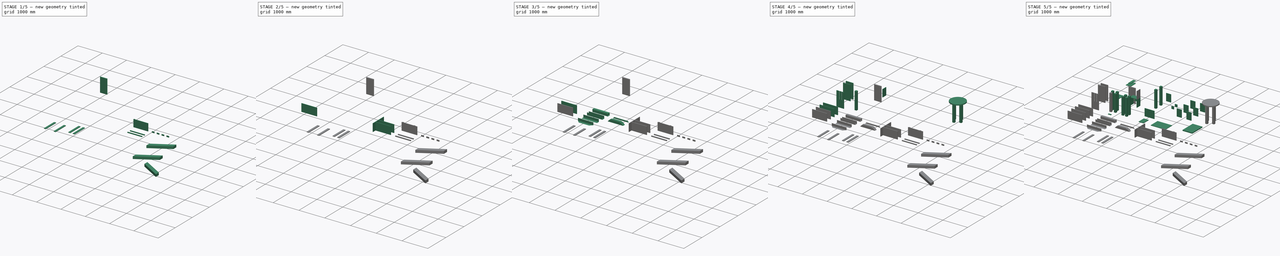
[diagram: build sequence overview — one tinted view per stage of 5, left to right]
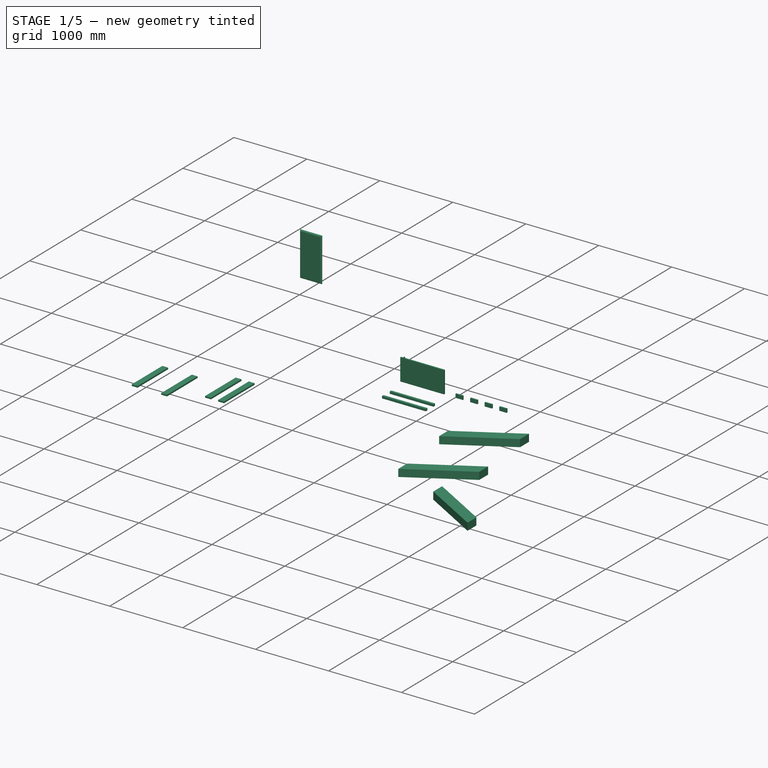
[diagram: stage 1 of 5 — iso view after this stage's code; geometry added in this stage tinted green]
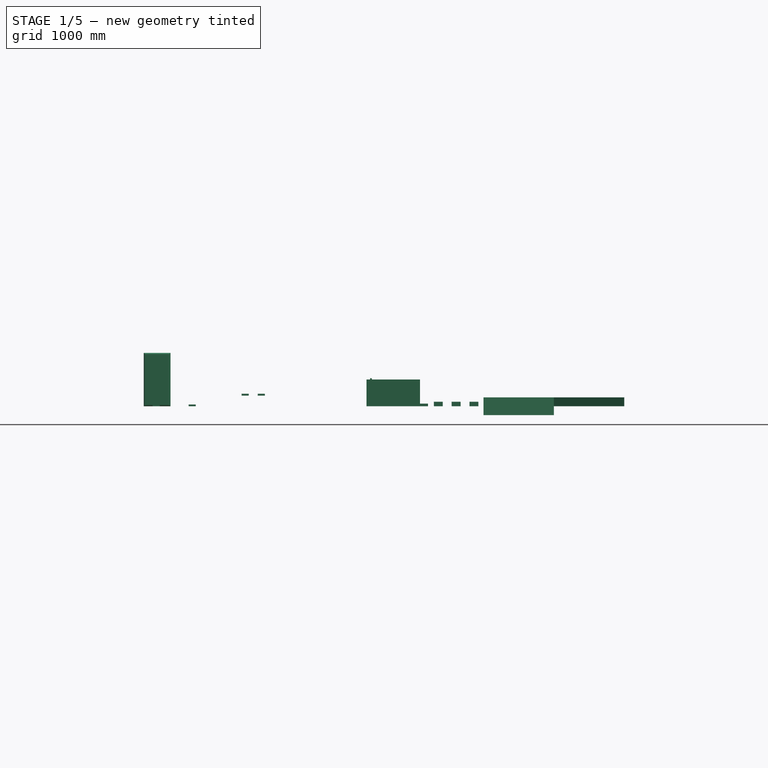
[diagram: stage 1 of 5 — front view after this stage's code; geometry added in this stage tinted green]
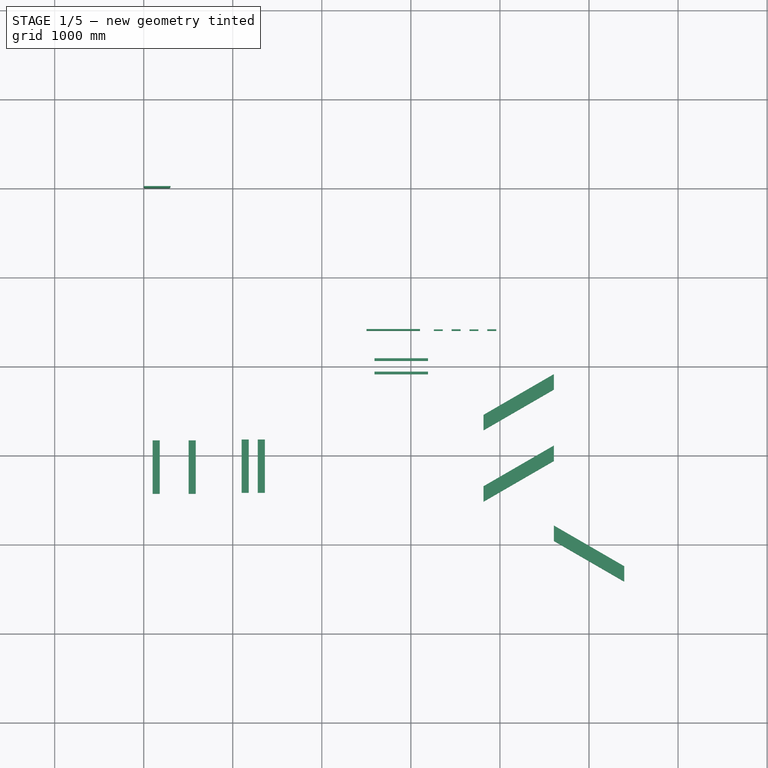
[diagram: stage 1 of 5 — top view after this stage's code; geometry added in this stage tinted green]
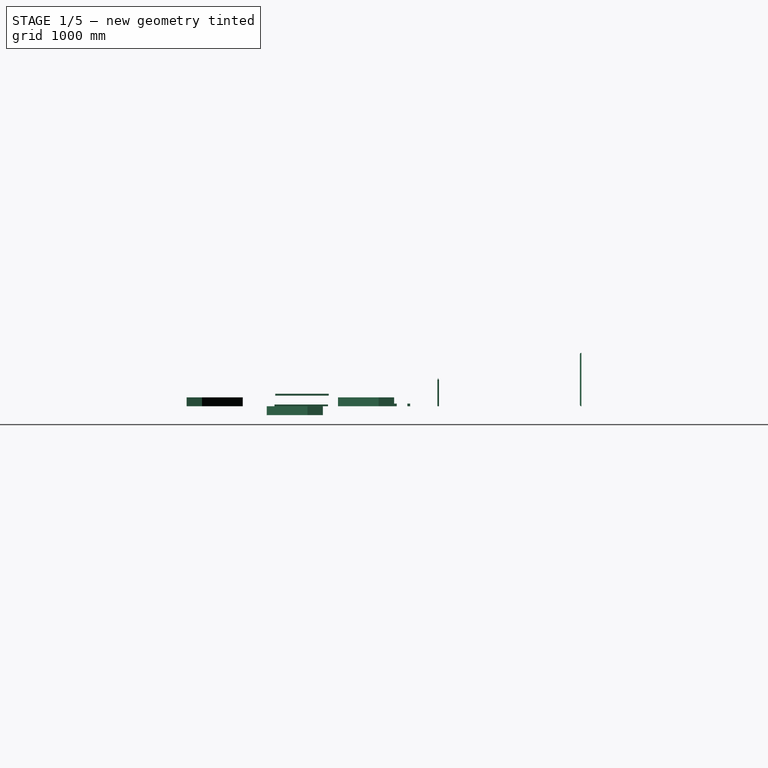
[diagram: stage 1 of 5 — right view after this stage's code; geometry added in this stage tinted green]
FCSTD DOCUMENT  (FreeCAD 0.21R33771 (Git))
Label: Test001_features
License: All rights reserved
LicenseURL: http://en.wikipedia.org/wiki/All_rights_reserved
objects: Sketcher::SketchObject×45, App::DocumentObjectGroup×37, Part::Box×35, PartDesign::Pad×20, PartDesign::Body×17, PartDesign::Hole×14, Part::FeaturePython×13, PartDesign::Pocket×12, App::LinkGroup×11, App::Part×10, App::Link×8, Part::Part2DObjectPython×8, PartDesign::Mirrored×6, App::MeasureDistance×6, Part::Cylinder×5, Part::Cut×4, PartDesign::Thickness×4, Part::Mirroring×3, PartDesign::Chamfer×3, Part::Extrusion×3, +10 more types
note: 253 computed .brp shape members not serialized (recipe doc carries the construction recipe); baked Part::Feature solids carry a one-line shape summary decoded from their .brp

FEATURE [Part::Box] panelFaceXZ  label="Array on Array 4"
  AttacherType = Attacher::AttachEngine3D
  Height = 50
  Length = 100
  Placement = pos=(3258,-1600,0) rot=(0,0,1;0rad)
  Width = 18
FEATURE [App::DocumentObjectGroup] Group037  label="Group, Dado magicCut"
  Group = -> [panelYZ2,panelYZ,panelFaceXZ003,panelFaceXZ001]
FEATURE [Sketcher::SketchObject] Sketch033  label="Pattern, panel2pad"
  AttachmentOffset = pos=(2502,0,1582) rot=(0,0,1;0rad)
  FullyConstrained = true
  MapMode = 5
  Placement = pos=(2502,-1582,-3.513e-13) rot=(1,0,0;1.5708rad)
  Support = -> [XZ_Plane023]
  sketch-geometry (4):
    g0: LineSegment StartX=0 StartY=300 StartZ=0 EndX=600 EndY=300 EndZ=0
    g1: LineSegment StartX=600 StartY=300 StartZ=0 EndX=600 EndY=0 EndZ=0
    g2: LineSegment StartX=600 StartY=0 StartZ=0 EndX=0 EndY=0 EndZ=0
    g3: LineSegment StartX=0 StartY=0 StartZ=0 EndX=0 EndY=300 EndZ=0
  constraints (11):
    c: Coincident(g0,g1)
    c: Coincident(g1,g2)
    c: Coincident(g2,g3)
    c: Coincident(g3,g0)
    c: Horizontal(g0)
    c: Horizontal(g2)
    c: Vertical(g1)
    c: Vertical(g3)
    c: Coincident(g2,g-1)
    c: DistanceX(g0,g0) = 600  'SizeX'
    c: DistanceY(g3,g3) = 300  'SizeY'
FEATURE [PartDesign::Pad] Pad014  label="panel Mortise and Tenon"
  Direction = (0,-1,2e-16)
  Length = 18
  Length2 = 10
  Placement = pos=(0,0,0) rot=(1,0,0;1.5708rad)
  Profile = -> Sketch033
  Type = 0
FEATURE [Sketcher::SketchObject] Sketch034  label="Joint Pattern"
  FullyConstrained = true
  MapMode = 5
  Placement = pos=(0,1.32e-13,300) rot=(0,0,1;3.14159rad)
  Support = -> [Pad014]
  sketch-geometry (4):
    g0: ArcOfCircle CenterX=0 CenterY=-7 CenterZ=0 NormalX=0 NormalY=0 NormalZ=1 AngleXU=0 Radius=3 StartAngle=3.14159 EndAngle=6.28319
    g1: ArcOfCircle CenterX=0 CenterY=7 CenterZ=0 NormalX=0 NormalY=0 NormalZ=1 AngleXU=0 Radius=3 StartAngle=1e-16 EndAngle=3.14159
    g2: LineSegment StartX=3 StartY=-7 StartZ=0 EndX=3 EndY=7 EndZ=0
    g3: LineSegment StartX=-3 StartY=7 StartZ=0 EndX=-3 EndY=-7 EndZ=0
  constraints (9):
    c: Tangent(g0,g2) = -1.5708
    c: Tangent(g2,g1) = -1.5708
    c: Tangent(g1,g3) = -1.5708
    c: Tangent(g3,g0) = -1.5708
    c: Equal(g0,g1)
    c: PointOnObject(g1,g-2)
    c: Symmetric(g1,g0,g-1)
    c: DistanceY(g3,g3) = 14
    c: Radius(g1) = 3
FEATURE [Part::Part2DObjectPython] Clone2D001  label="Pattern from Joint Pattern 001"  # Draft 2D object (typed FeaturePython)
  Fuse = false
  Objects = -> [Sketch034]
  Placement = pos=(2552,-1591,300) rot=(0,0,1;1.5708rad)
  Scale = (1,1,1)
FEATURE [PartDesign::Pad] Tenon  label="Tenon "
  BaseFeature = -> Pad014
  Direction = (0,0,1)
  Length = 30
  Length2 = 10
  Midplane = true
  Placement = pos=(0,0,0) rot=(1,0,0;1.5708rad)
  Profile = -> Clone2D001
  Type = 0
FEATURE [PartDesign::Body] Body015  label="Body, panel2pad"
  Group = -> [Sketch033,Pad014,Sketch034,Clone2D001,Tenon,Clone2D002,Tenon001,Clone2D003,Tenon002,Clone2D004,Tenon003,Clone2D005,Mortise,Clone2D006,Mortise001,Clone2D007,Mortise002,Clone2D008,Mortise003]
  Origin = -> Origin023
  Tip = -> Mortise003
FEATURE [App::Part] Part007  label="Part, panel2pad"
  Group = -> [Body015]
  Origin = -> Origin022
FEATURE [App::DocumentObjectGroup] Group038  label="Group, Mortise and Tenon"
  Group = -> [Part007]
FEATURE [Part::FeaturePython] Array004  # Draft array (typed FeaturePython)
  AlwaysSyncPlacement = false
  Angle = 360
  ArrayType = 0
  Axis = (0,0,1)
  Base = -> panelFaceXZ
  Center = (0,0,0)
  Count = 2
  ExpandArray = false
  Fuse = false
  IntervalAxis = (0,0,0)
  IntervalX = (200,1,0)
  IntervalY = (0,200,0)
  IntervalZ = (0,0,200)
  NumberCircles = 3
  NumberPolar = 5
  NumberX = 2
  NumberY = 1
  NumberZ = 1
  PlacementList = 2 placements: [(3258,-1600,0),(3458,-1599,0)]
  RadialDistance = 50
  ScaleList = (2) [(1,1,1),(1,1,1)]
  Symmetry = 1
  TangentialDistance = 25
FEATURE [Part::FeaturePython] Array005  # Draft array (typed FeaturePython)
  AlwaysSyncPlacement = false
  Angle = 360
  ArrayType = 0
  Axis = (0,0,1)
  Base = -> Array004
  Center = (0,0,0)
  Count = 2
  ExpandArray = false
  Fuse = false
  IntervalAxis = (0,0,0)
  IntervalX = (400,0,0)
  IntervalY = (0,400,0)
  IntervalZ = (0,0,400)
  NumberCircles = 3
  NumberPolar = 5
  NumberX = 2
  NumberY = 1
  NumberZ = 1
  PlacementList = 2 placements: [(0,0,0),(400,0,0)]
  RadialDistance = 50
  ScaleList = (2) [(1,1,1),(1,1,1)]
  Symmetry = 1
  TangentialDistance = 25
FEATURE [App::DocumentObjectGroup] Group036  label="Group, Array on Array"
  Group = -> [panelFaceXZ,Array005]
FEATURE [Part::Box] panelFaceXZ006  label="panel Compound 2"
  AttacherType = Attacher::AttachEngine3D
  Height = 30
  Length = 600
  Placement = pos=(2592,-1936,3.55e-13) rot=(0,0,1;0rad)
  Width = 30
FEATURE [Part::Box] panelFaceXZ007  label="panel Compound 1"
  AttacherType = Attacher::AttachEngine3D
  Height = 30
  Length = 600
  Placement = pos=(2592,-2086,3.55e-13) rot=(0,0,1;0rad)
  Width = 30
FEATURE [Part::Compound] Compound
  Links = -> [panelFaceXZ007,panelFaceXZ006]
FEATURE [App::DocumentObjectGroup] Group039  label="Group, Compound"
  Group = -> [Compound]
FEATURE [Part::Box] panelZY002  label="nested 1 link"
  AttacherType = Attacher::AttachEngine3D
  Height = 20
  Length = 80
  Placement = pos=(0,-3428,0) rot=(0,0,1;0rad)
  Width = 600
FEATURE [Part::FeaturePython] Clone002  label="Clone, nested 1 link "  # Draft clone (typed FeaturePython)
  AttacherType = Attacher::AttachEngine3D
  Fuse = false
  Objects = -> [panelZY002]
  Placement = pos=(100,-3428,0) rot=(0,0,1;0rad)
  Scale = (1,1,1)
FEATURE [App::LinkGroup] LinkGroup003  label="Container, nested 1 link "
  ElementList = -> [panelZY002,Clone002]
  LinkMode = 0
FEATURE [App::Link] Link002  label="Link, nested 1 link "
  LinkPlacement = pos=(0,0,200) rot=(0,0,1;0rad)
  LinkedObject = -> LinkGroup003
  Placement = pos=(0,0,200) rot=(0,0,1;0rad)
FEATURE [Part::Box] panelYX  label="nested 2 link"
  AttacherType = Attacher::AttachEngine3D
  Height = 20
  Length = 80
  Placement = pos=(604,-3428,0) rot=(0,0,1;0rad)
  Width = 600
FEATURE [App::LinkGroup] LinkGroup004  label="Container, base link"
  ElementList = -> [panelYX]
  LinkMode = 0
FEATURE [Part::FeaturePython] Clone003  label="Clone, base"  # Draft clone (typed FeaturePython)
  AttacherType = Attacher::AttachEngine3D
  Fuse = false
  Objects = -> [LinkGroup004]
  Placement = pos=(-100,0,0) rot=(0,0,1;0rad)
  Scale = (1,1,1)
FEATURE [App::LinkGroup] LinkGroup005  label="Container, nested 2 link"
  ElementList = -> [LinkGroup004,Clone003]
  LinkMode = 0
FEATURE [App::Link] Link003  label="Link, nested 2 link"
  LinkPlacement = pos=(0,0,200) rot=(0,0,1;0rad)
  LinkedObject = -> LinkGroup005
  Placement = pos=(0,0,200) rot=(0,0,1;0rad)
FEATURE [App::DocumentObjectGroup] Group040  label="Group, nested 1 link "
  Group = -> [LinkGroup003,Link002]
FEATURE [App::DocumentObjectGroup] Group041  label="Group, nested 2 link"
  Group = -> [LinkGroup005,Link003]
FEATURE [Part::Box] panelYX001  label="nested 1 clone"
  AttacherType = Attacher::AttachEngine3D
  Height = 20
  Length = 80
  Placement = pos=(1100,-3420,0) rot=(0,0,1;0rad)
  Width = 600
FEATURE [App::LinkGroup] LinkGroup006  label="Container, clone base"
  ElementList = -> [panelYX001]
  LinkMode = 0
FEATURE [Part::FeaturePython] Clone004  label="Clone, clone base"  # Draft clone (typed FeaturePython)
  AttacherType = Attacher::AttachEngine3D
  Fuse = false
  Objects = -> [LinkGroup006]
  Placement = pos=(180,0,0) rot=(0,0,1;0rad)
  Scale = (1,1,1)
FEATURE [App::LinkGroup] LinkGroup007  label="Container, nested clone"
  ElementList = -> [LinkGroup006,Clone004]
  LinkMode = 0
FEATURE [Part::FeaturePython] Clone005  label="Clone, nested clone"  # Draft clone (typed FeaturePython)
  AttacherType = Attacher::AttachEngine3D
  Fuse = false
  Objects = -> [LinkGroup007]
  Placement = pos=(0,0,120) rot=(0,0,1;0rad)
  Scale = (1,1,1)
FEATURE [App::DocumentObjectGroup] Group042  label="Group, nested clone"
  Group = -> [LinkGroup007,Clone005]
FEATURE [Sketcher::SketchObject] Sketch035  label="Pattern, panel2pad001"
  FullyConstrained = true
  MapMode = 5
  Placement = pos=(0,0,0) rot=(1,0,0;1.5708rad)
  Support = -> [XZ_Plane025]
  sketch-geometry (4):
    g0: LineSegment StartX=0 StartY=600 StartZ=0 EndX=300 EndY=600 EndZ=0
    g1: LineSegment StartX=300 StartY=600 StartZ=0 EndX=300 EndY=0 EndZ=0
    g2: LineSegment StartX=300 StartY=0 StartZ=0 EndX=0 EndY=0 EndZ=0
    g3: LineSegment StartX=0 StartY=0 StartZ=0 EndX=0 EndY=600 EndZ=0
  constraints (11):
    c: Coincident(g0,g1)
    c: Coincident(g1,g2)
    c: Coincident(g2,g3)
    c: Coincident(g3,g0)
    c: Horizontal(g0)
    c: Horizontal(g2)
    c: Vertical(g1)
    c: Vertical(g3)
    c: Coincident(g2,g-1)
    c: DistanceX(g0,g0) = 300  'SizeX'
    c: DistanceY(g3,g3) = 600  'SizeY'
FEATURE [PartDesign::Pad] Pad015  label="panel2pad"
  Direction = (0,-1,2e-16)
  Length = 18
  Length2 = 10
  Placement = pos=(0,0,0) rot=(1,0,0;1.5708rad)
  Profile = -> Sketch035
  Reversed = true
  Type = 0
FEATURE [Sketcher::SketchObject] routerPattern002
  FullyConstrained = true
  Placement = pos=(150,1.332e-13,600) rot=(0,1,0;1.5708rad)
  sketch-geometry (4):
    g0: ArcOfCircle CenterX=18 CenterY=-18 CenterZ=0 NormalX=0 NormalY=0 NormalZ=1 AngleXU=0 Radius=18 StartAngle=1.5708 EndAngle=3.14159
    g1: ArcOfCircle CenterX=-18 CenterY=18 CenterZ=0 NormalX=0 NormalY=0 NormalZ=1 AngleXU=0 Radius=18 StartAngle=4.71239 EndAngle=6.28319
    g2: ArcOfCircle CenterX=18 CenterY=18 CenterZ=0 NormalX=0 NormalY=0 NormalZ=1 AngleXU=0 Radius=18 StartAngle=3.14159 EndAngle=4.71239
    g3: ArcOfCircle CenterX=-18 CenterY=-18 CenterZ=0 NormalX=0 NormalY=0 NormalZ=1 AngleXU=0 Radius=18 StartAngle=6.28318 EndAngle=7.85398
  constraints (16):
    c: Equal(g3,g1)
    c: Equal(g1,g2)
    c: Equal(g2,g0)
    c: Vertical(g0,g2)
    c: Horizontal(g3,g0)
    c: Vertical(g1,g3)
    c: Horizontal(g1,g2)
    c: Coincident(g1,g2)
    c: Coincident(g0,g2)
    c: Coincident(g3,g0)
    c: Coincident(g3,g1)
    c: PointOnObject(g1,g-1)
    c: PointOnObject(g1,g-2)
    c: DistanceY(g0,g-1) = 18
    c: Vertical(g0,g0)
    c: Horizontal(g1,g1)
FEATURE [PartDesign::Pocket] router002  label="RoundOver "
  BaseFeature = -> Pad015
  Direction = (-1,0,-2e-16)
  Length = 5
  Length2 = 5
  Midplane = true
  Placement = pos=(0,0,0) rot=(1,0,0;1.5708rad)
  Profile = -> routerPattern002
  Type = 1
FEATURE [Sketcher::SketchObject] routerPattern003
  FullyConstrained = true
  Placement = pos=(300,6.7e-14,300) rot=(0,0,1;0rad)
  sketch-geometry (4):
    g0: ArcOfCircle CenterX=18 CenterY=-18 CenterZ=0 NormalX=0 NormalY=0 NormalZ=1 AngleXU=0 Radius=18 StartAngle=1.5708 EndAngle=3.14159
    g1: ArcOfCircle CenterX=-18 CenterY=18 CenterZ=0 NormalX=0 NormalY=0 NormalZ=1 AngleXU=0 Radius=18 StartAngle=4.71239 EndAngle=6.28319
    g2: ArcOfCircle CenterX=18 CenterY=18 CenterZ=0 NormalX=0 NormalY=0 NormalZ=1 AngleXU=0 Radius=18 StartAngle=3.14159 EndAngle=4.71239
    g3: ArcOfCircle CenterX=-18 CenterY=-18 CenterZ=0 NormalX=0 NormalY=0 NormalZ=1 AngleXU=0 Radius=18 StartAngle=6.28318 EndAngle=7.85398
  constraints (16):
    c: Equal(g3,g1)
    c: Equal(g1,g2)
    c: Equal(g2,g0)
    c: Vertical(g0,g2)
    c: Horizontal(g3,g0)
    c: Vertical(g1,g3)
    c: Horizontal(g1,g2)
    c: Coincident(g1,g2)
    c: Coincident(g0,g2)
    c: Coincident(g3,g0)
    c: Coincident(g3,g1)
    c: PointOnObject(g1,g-1)
    c: PointOnObject(g1,g-2)
    c: DistanceY(g0,g-1) = 18
    c: Vertical(g0,g0)
    c: Horizontal(g1,g1)
FEATURE [PartDesign::Pocket] router003  label="RoundOver 001"
  BaseFeature = -> router002
  Direction = (0,0,-1)
  Length = 5
  Length2 = 5
  Midplane = true
  Placement = pos=(0,0,0) rot=(1,0,0;1.5708rad)
  Profile = -> routerPattern003
  Type = 1
FEATURE [Sketcher::SketchObject] routerPattern004
  FullyConstrained = true
  Placement = pos=(150,0,0) rot=(0,1,0;1.5708rad)
  sketch-geometry (4):
    g0: ArcOfCircle CenterX=18 CenterY=-18 CenterZ=0 NormalX=0 NormalY=0 NormalZ=1 AngleXU=0 Radius=18 StartAngle=1.5708 EndAngle=3.14159
    g1: ArcOfCircle CenterX=-18 CenterY=18 CenterZ=0 NormalX=0 NormalY=0 NormalZ=1 AngleXU=0 Radius=18 StartAngle=4.71239 EndAngle=6.28319
    g2: ArcOfCircle CenterX=18 CenterY=18 CenterZ=0 NormalX=0 NormalY=0 NormalZ=1 AngleXU=0 Radius=18 StartAngle=3.14159 EndAngle=4.71239
    g3: ArcOfCircle CenterX=-18 CenterY=-18 CenterZ=0 NormalX=0 NormalY=0 NormalZ=1 AngleXU=0 Radius=18 StartAngle=1.97117e-06 EndAngle=1.5708
  constraints (16):
    c: Equal(g3,g1)
    c: Equal(g1,g2)
    c: Equal(g2,g0)
    c: Vertical(g0,g2)
    c: Horizontal(g3,g0)
    c: Vertical(g1,g3)
    c: Horizontal(g1,g2)
    c: Coincident(g1,g2)
    c: Coincident(g0,g2)
    c: Coincident(g3,g0)
    c: Coincident(g3,g1)
    c: PointOnObject(g1,g-1)
    c: PointOnObject(g1,g-2)
    c: DistanceY(g0,g-1) = 18
    c: Vertical(g0,g0)
    c: Horizontal(g1,g1)
FEATURE [PartDesign::Pocket] router004  label="RoundOver 002"
  BaseFeature = -> router003
  Direction = (-1,0,-2e-16)
  Length = 5
  Length2 = 5
  Midplane = true
  Placement = pos=(0,0,0) rot=(1,0,0;1.5708rad)
  Profile = -> routerPattern004
  Type = 1
FEATURE [Sketcher::SketchObject] routerPattern005
  FullyConstrained = true
  Placement = pos=(0,6.7e-14,300) rot=(0,0,1;0rad)
  sketch-geometry (4):
    g0: ArcOfCircle CenterX=18 CenterY=-18 CenterZ=0 NormalX=0 NormalY=0 NormalZ=1 AngleXU=0 Radius=18 StartAngle=1.5708 EndAngle=3.14159
    g1: ArcOfCircle CenterX=-18 CenterY=18 CenterZ=0 NormalX=0 NormalY=0 NormalZ=1 AngleXU=0 Radius=18 StartAngle=4.71239 EndAngle=6.28319
    g2: ArcOfCircle CenterX=18 CenterY=18 CenterZ=0 NormalX=0 NormalY=0 NormalZ=1 AngleXU=0 Radius=18 StartAngle=3.14159 EndAngle=4.71239
    g3: ArcOfCircle CenterX=-18 CenterY=-18 CenterZ=0 NormalX=0 NormalY=0 NormalZ=1 AngleXU=0 Radius=18 StartAngle=6.28318 EndAngle=7.85398
  constraints (16):
    c: Equal(g3,g1)
    c: Equal(g1,g2)
    c: Equal(g2,g0)
    c: Vertical(g0,g2)
    c: Horizontal(g3,g0)
    c: Vertical(g1,g3)
    c: Horizontal(g1,g2)
    c: Coincident(g1,g2)
    c: Coincident(g0,g2)
    c: Coincident(g3,g0)
    c: Coincident(g3,g1)
    c: PointOnObject(g1,g-1)
    c: PointOnObject(g1,g-2)
    c: DistanceY(g0,g-1) = 18
    c: Vertical(g0,g0)
    c: Horizontal(g1,g1)
FEATURE [PartDesign::Pocket] router005  label="RoundOver 003"
  BaseFeature = -> router004
  Direction = (0,0,-1)
  Length = 5
  Length2 = 5
  Midplane = true
  Placement = pos=(0,0,0) rot=(1,0,0;1.5708rad)
  Profile = -> routerPattern005
  Type = 1
FEATURE [PartDesign::Body] Body016  label="Body, panel2pad001"
  Group = -> [Sketch035,Pad015,routerPattern002,router002,routerPattern003,router003,routerPattern004,router004,routerPattern005,router005]
  Origin = -> Origin025
  Tip = -> router005
FEATURE [App::Part] Part008  label="Part, panel2pad001"
  Group = -> [Body016]
  Origin = -> Origin024
FEATURE [App::LinkGroup] LinkGroup009  label="Container, Base Pattern"
  ElementList = -> [Part008]
  LinkMode = 0
  Placement = pos=(2000,-3000,0) rot=(0,0,1;0rad)
FEATURE [App::Link] Link004  label="Link, panelZX002 "
  LinkPlacement = pos=(396,0,0) rot=(0,0,1;0rad)
  LinkedObject = -> Part008
  Placement = pos=(396,0,0) rot=(0,0,1;0rad)
FEATURE [App::Link] Link005  label="Link, panelZX001 "
  LinkPlacement = pos=(810,0,0) rot=(0,0,1;0rad)
  LinkedObject = -> Part008
  Placement = pos=(810,0,0) rot=(0,0,1;0rad)
FEATURE [App::LinkGroup] LinkGroup008  label="Container, Links "
  ElementList = -> [Link004,Link005]
  LinkMode = 0
  Placement = pos=(2000,-3000,0) rot=(0,0,1;0rad)
FEATURE [Sketcher::SketchObject] Sketch036
  FullyConstrained = false
  sketch-geometry (6):
    g0: LineSegment StartX=4605.73 StartY=-2085.41 StartZ=0 EndX=3815.31 EndY=-2542.77 EndZ=0
    g1: LineSegment StartX=3815.31 StartY=-2542.77 StartZ=0 EndX=3815.31 EndY=-2716.07 EndZ=0
    g2: LineSegment StartX=3815.31 StartY=-2716.07 StartZ=0 EndX=4605.73 EndY=-2258.71 EndZ=0
    g3: LineSegment StartX=4605.73 StartY=-2258.71 StartZ=0 EndX=4605.73 EndY=-2085.41 EndZ=0
    g4: LineSegment StartX=4605.73 StartY=-2085.41 StartZ=0 EndX=5142.1 EndY=-3012.37 EndZ=0
    g5: LineSegment StartX=3694.42 StartY=-2507.14 StartZ=0 EndX=4405.2 EndY=-3735.53 EndZ=0
  constraints (13):
    c: Coincident(g0,g1)
    c: Vertical(g1)
    c: Coincident(g1,g2)
    c: Coincident(g2,g3)
    c: Coincident(g0,g3)
    c: Equal(g3,g1)
    c: Vertical(g3)
    c: Coincident(g4,g0)
    c: PointOnObject(g1,g5)
    c: Angle(g0,g4) = 1.5708
    c: Parallel(g5,g4)
    c: Distance(g4,g5) = 1000  'SizeX'
    c: Distance(g2,g0) = 150  'SizeY'
FEATURE [Part::Extrusion] Extrude
  Base = -> Sketch036
  Dir = (0,0,1)
  DirMode = 2
  FaceMakerClass = Part::FaceMakerBullseye
  LengthFwd = 100
  LengthRev = 0
  Solid = true
  Symmetric = false
FEATURE [Sketcher::SketchObject] Sketch037
  FullyConstrained = false
  sketch-geometry (6):
    g0: LineSegment StartX=4605.73 StartY=-2085.41 StartZ=0 EndX=3815.31 EndY=-2542.77 EndZ=0
    g1: LineSegment StartX=3815.31 StartY=-2542.77 StartZ=0 EndX=3815.31 EndY=-2716.07 EndZ=0
    g2: LineSegment StartX=3815.31 StartY=-2716.07 StartZ=0 EndX=4605.73 EndY=-2258.71 EndZ=0
    g3: LineSegment StartX=4605.73 StartY=-2258.71 StartZ=0 EndX=4605.73 EndY=-2085.41 EndZ=0
    g4: LineSegment StartX=4605.73 StartY=-2085.41 StartZ=0 EndX=5142.1 EndY=-3012.37 EndZ=0
    g5: LineSegment StartX=3694.42 StartY=-2507.14 StartZ=0 EndX=4405.2 EndY=-3735.53 EndZ=0
  constraints (13):
    c: Coincident(g0,g1)
    c: Vertical(g1)
    c: Coincident(g1,g2)
    c: Coincident(g2,g3)
    c: Coincident(g0,g3)
    c: Equal(g3,g1)
    c: Vertical(g3)
    c: Coincident(g4,g0)
    c: PointOnObject(g1,g5)
    c: Angle(g0,g4) = 1.5708
    c: Parallel(g5,g4)
    c: Distance(g4,g5) = 1000  'SizeX'
    c: Distance(g2,g0) = 150  'SizeY'
FEATURE [Part::Extrusion] Extrude001  label="Part Mirror on Extrude"
  Base = -> Sketch037
  Dir = (0,0,1)
  DirMode = 2
  FaceMakerClass = Part::FaceMakerBullseye
  LengthFwd = 100
  LengthRev = 0
  Placement = pos=(0,-800,0) rot=(0,0,1;0rad)
  Solid = true
  Symmetric = false
FEATURE [Sketcher::SketchObject] Sketch038
  FullyConstrained = false
  sketch-geometry (6):
    g0: LineSegment StartX=4605.73 StartY=-2085.41 StartZ=0 EndX=3815.31 EndY=-2542.77 EndZ=0
    g1: LineSegment StartX=3815.31 StartY=-2542.77 StartZ=0 EndX=3815.31 EndY=-2716.07 EndZ=0
    g2: LineSegment StartX=3815.31 StartY=-2716.07 StartZ=0 EndX=4605.73 EndY=-2258.71 EndZ=0
    g3: LineSegment StartX=4605.73 StartY=-2258.71 StartZ=0 EndX=4605.73 EndY=-2085.41 EndZ=0
    g4: LineSegment StartX=4605.73 StartY=-2085.41 StartZ=0 EndX=5142.1 EndY=-3012.37 EndZ=0
    g5: LineSegment StartX=3694.42 StartY=-2507.14 StartZ=0 EndX=4405.2 EndY=-3735.53 EndZ=0
  constraints (13):
    c: Coincident(g0,g1)
    c: Vertical(g1)
    c: Coincident(g1,g2)
    c: Coincident(g2,g3)
    c: Coincident(g0,g3)
    c: Equal(g3,g1)
    c: Vertical(g3)
    c: Coincident(g4,g0)
    c: PointOnObject(g1,g5)
    c: Angle(g0,g4) = 1.5708
    c: Parallel(g5,g4)
    c: Distance(g4,g5) = 1000  'SizeX'
    c: Distance(g2,g0) = 150  'SizeY'
FEATURE [Part::Extrusion] Extrude002  label="Mirror LinkGroup on Extrude"
  Base = -> Sketch038
  Dir = (0,0,1)
  DirMode = 2
  FaceMakerClass = Part::FaceMakerBullseye
  LengthFwd = 100
  LengthRev = 0
  Placement = pos=(0,-1700,0) rot=(0,0,1;0rad)
  Solid = true
  Symmetric = false
FEATURE [Part::Mirroring] Part__Mirroring001  label="Mirror on Extrude"
  Base = (0,0,0)
  Normal = (0,0,1)
  Source = -> Extrude001
FEATURE [App::Part] Part009
  Group = -> [Sketch038,Extrude002]
  Origin = -> Origin026
FEATURE [App::LinkGroup] LinkGroup010  label="LinkGroup on Part"
  ElementList = -> [Part009]
  LinkMode = 0
FEATURE [Part::Mirroring] mirror  label="Mirror on Part"
  Base = (4605.73,-3872.06,50)
  Normal = (1,0,0)
  Source = -> LinkGroup010
FEATURE [App::DocumentObjectGroup] Group043  label="Group, Extrude "
  Group = -> [Extrude,Extrude001,Part__Mirroring001,mirror]
FEATURE [Part::FeaturePython] Plate  label="Custom object"  # WARN: FeaturePython — macro-defined, semantics opaque (R4)
  AttacherType = Attacher::AttachEngine3D
  Centers = 406.4
  Cost = 2.99
  Function = 0
  Height = 88.9
  Length = 2438.4
  MemberName = Plate
  Placement = pos=(900,-2500,0) rot=(0,0,0;3.14159rad)
  Width = 38.1
FEATURE [App::DocumentObjectGroup] Group044  label="Group, Stick Frame Workbench "
  Group = -> [Plate]
FEATURE [Spreadsheet::Sheet] toCut
  cells = A1='Name; B1='Dimensions; E1='Thickness; F1='Quantity; G1='m2; A2='Back HDF; B2='200 mm; C2='x; D2='300 mm; E2='3 mm; F2=1; G2='0.06; A3='Black Front; B3='200 mm; C3='x; D3='300 mm; E3='18 mm; F3=1; G3='0.06; A4='Side 1; B4='200 mm; C4='x; D4='300 mm; E4='18 mm; F4=1; G4='0.06; A5='Side 2; B5='200 mm; C5='x; D5='300 mm; E5='18 mm; F5=1; G5='0.06; A6='Top 1; B6='200 mm; C6='x; D6='300 mm; E6='18 mm; F6=1; G6='0.06; A7='Foot 1; B7='80 mm; C7='x; D7='700 mm; E7='80 mm; F7=1; G7='0.056; A8='Foot 2; B8='80 mm; C8='x; D8='700 mm; E8='80 mm; F8=1; G8='0.056; A9='NoParent 200; B9='200 mm; C9='x; D9='300 mm; E9='18 mm; F9=1; G9='0.06; A10='NoGrand 100; B10='100 mm; C10='x; D10='300 mm; E10='18 mm; F10=1; G10='0.03; A11='Small Cube 2; B11='100 mm; C11='x; D11='100 mm; E11='18 mm; F11=1; G11='0.01; A12='Small Cube 1; B12='100 mm; C12='x; D12='100 mm; E12='18 mm; F12=1; G12='0.01; A13='Array Cube; B13='200 mm; C13='x; D13='300 mm; E13='18 mm; F13=6; G13='0.36; A14='Hidden Cube; B14='200 mm; C14='x; D14='300 mm; E14='18 mm; F14=1; G14='0.06; A15='Sort Order; B15='50 mm; C15='x; D15='120 mm; E15='18 mm; F15=1; G15='0.006; A16='PDMirror Pad; B16='200 mm; C16='x; D16='300 mm; E16='18 mm; F16=2; G16='0.12; A17='Pad Single; B17='200 mm; C17='x; D17='300 mm; E17='18 mm; F17=1; G17='0.06; A18='PDMulti 4 Pad; B18='200 mm; C18='x; D18='300 mm; E18='18 mm; F18=4; G18='0.24; A19='PDMulti 8 Pad; B19='200 mm; C19='x; D19='300 mm; E19='18 mm; F19=8; G19='0.48; A20='Array Pad; B20='80 mm; C20='x; D20='700 mm; E20='80 mm; F20=4; G20='0.224; A21='Array Polar Pad; B21='80 mm; C21='x; D21='700 mm; E21='80 mm; F21=4; G21='0.224; A22='Array Polar Cube; B22='80 mm; C22='x; D22='700 mm; E22='80 mm; F22=4; G22='0.224; A23='PMirror 2 Cube; B23='200 mm; C23='x; D23='300 mm; E23='18 mm; F23=2; G23='0.12; A24='LinkGroup, panelZX; B24='300 mm; C24='x; D24='600 mm; E24='18 mm; F24=2; G24='0.36; A25='LinkGroup, panelZX001; B25='300 mm; C25='x; D25='600 mm; E25='18 mm; F25=2; G25='0.36; A26='PartCut, Base 1; B26='300 mm; C26='x; D26='600 mm; E26='18 mm; F26=2; G26='0.36; A27='PartCut, Tool 1; B27='300 mm; C27='x; D27='600 mm; E27='18 mm; F27=2; G27='0.36; A28='PartCut, Tool 2; B28='300 mm; C28='x; D28='600 mm; E28='18 mm; F28=2; G28='0.36; A29='panel with screw links; B29='300 mm; C29='x; D29='600 mm; E29='18 mm; F29=1; +257 more cells
FEATURE [TechDraw::DrawSVGTemplate] Template
  Height = 0
  Orientation = 0
  Template = <path>
  Width = 0
FEATURE [TechDraw::DrawViewSpreadsheet] Sheet
  CellEnd = G88
  CellStart = A1
  Font = DejaVu Sans
  LineWidth = 0.1
  LockPosition = false
  Rotation = 0
  ScaleType = 2
  Source = -> toCut
  Symbol = <blob: 116393 chars omitted>
  TextSize = 13
  X = 105
  Y = 148
FEATURE [TechDraw::DrawPage] toPrint
  KeepUpdated = true
  NextBalloonIndex = 1
  ProjectionType = 0
  Template = -> Template
  Views = -> [Sheet]
note: 1 file-system path scrubbed to <path> (originals preserved in the JSON sidecar)
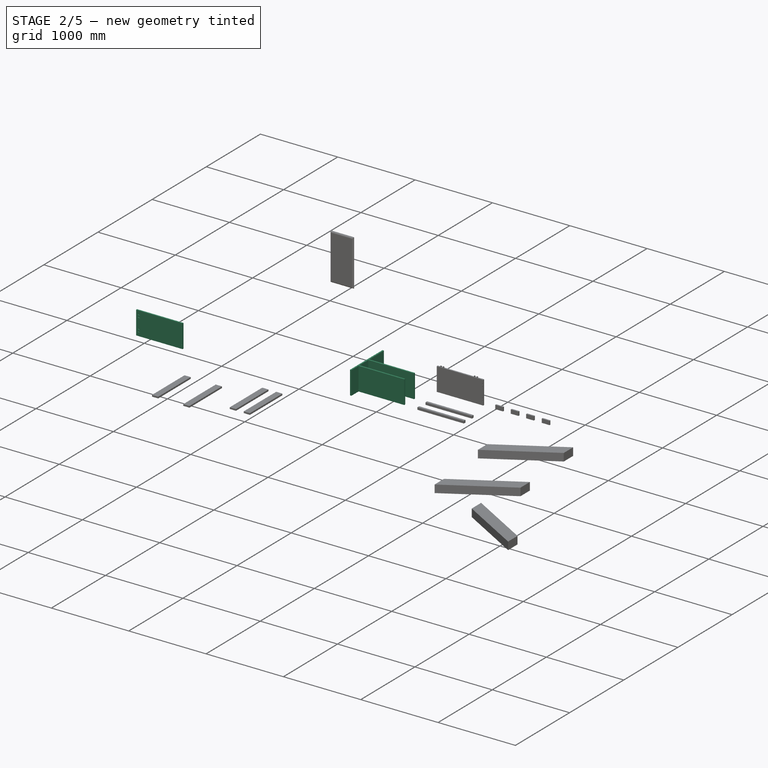
[diagram: stage 2 of 5 — iso view after this stage's code; geometry added in this stage tinted green]
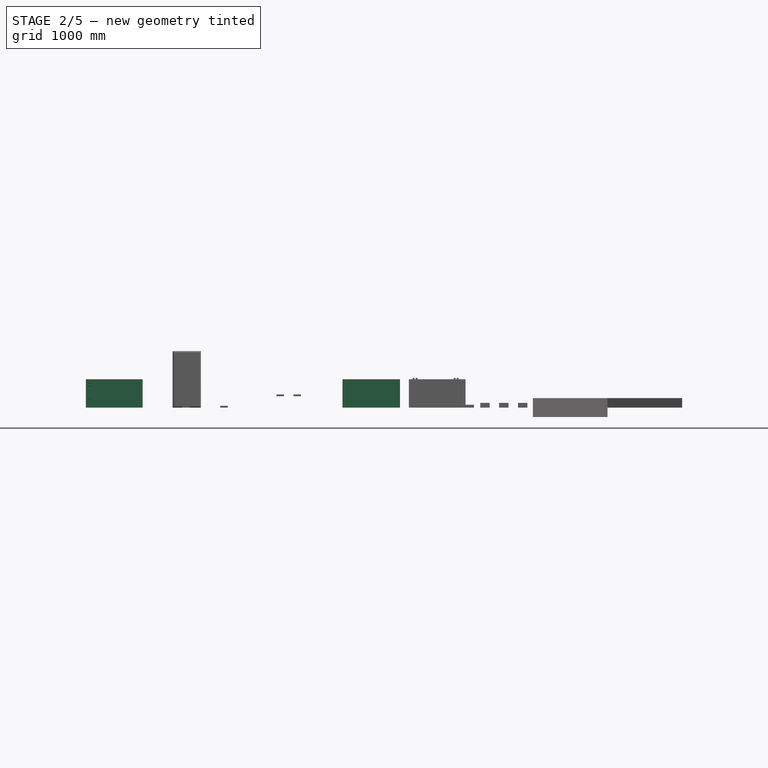
[diagram: stage 2 of 5 — front view after this stage's code; geometry added in this stage tinted green]
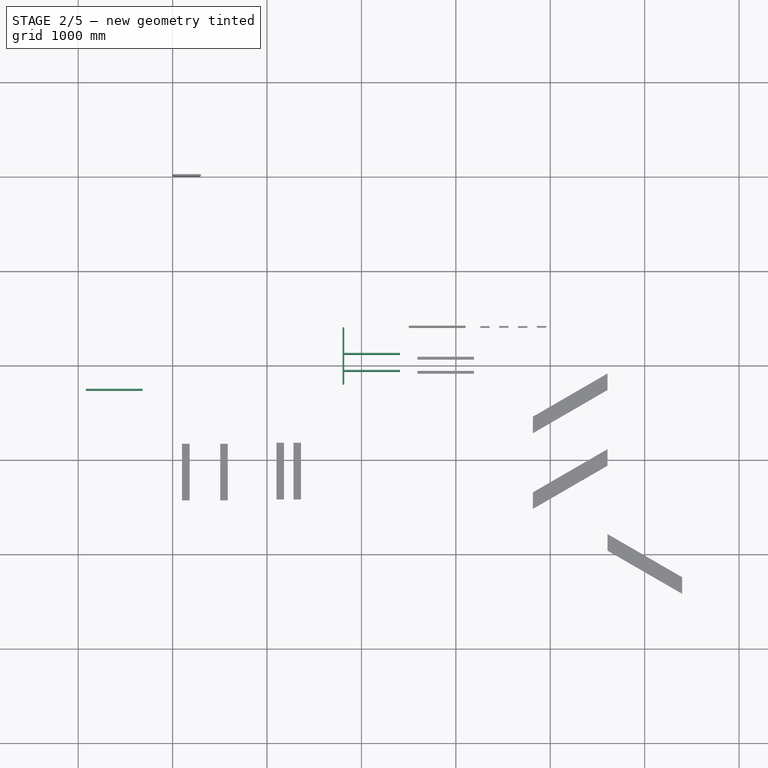
[diagram: stage 2 of 5 — top view after this stage's code; geometry added in this stage tinted green]
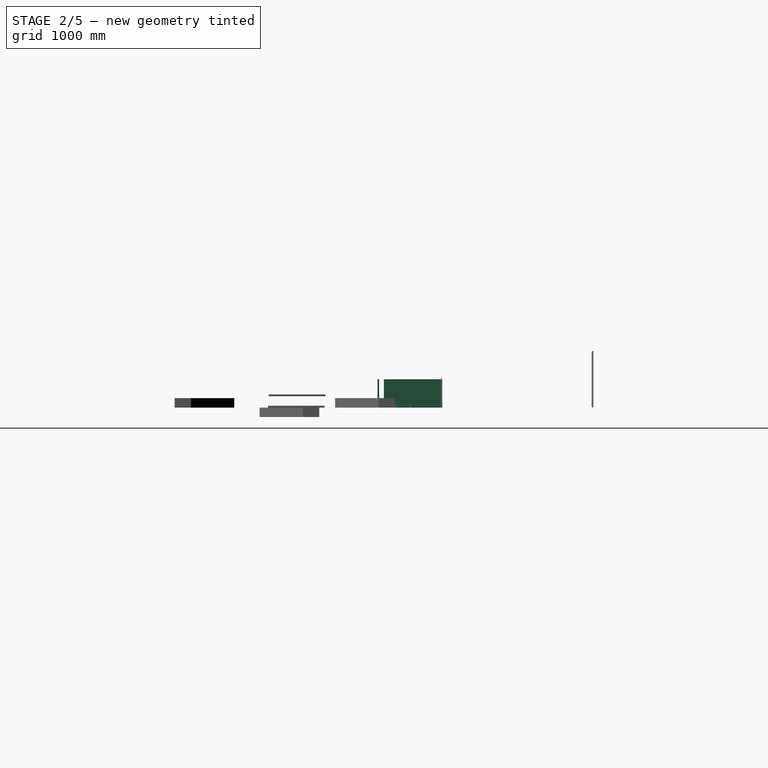
[diagram: stage 2 of 5 — right view after this stage's code; geometry added in this stage tinted green]
FEATURE [PartDesign::Body] Body013  label="Body, Frame001"
  Group = -> [Sketch017,Pad012,Frame45Cut001,routerPattern,router,routerPattern001,router001,Sketch018,Hole,Sketch019,Hole001,Sketch020,Hole002,Sketch021,Hole003]
  Origin = -> Origin019
  Tip = -> Hole003
FEATURE [App::Part] Part005  label="Part, Frame001"
  Group = -> [Body013]
  Origin = -> Origin018
FEATURE [App::DocumentObjectGroup] Group034  label="Group, Frames"
  Group = -> [Part004,Part005]
FEATURE [Sketcher::SketchObject] Sketch022  label="Pattern, panel with dowels"
  AttachmentOffset = pos=(-918,0,2250) rot=(0,0,1;0rad)
  FullyConstrained = true
  MapMode = 5
  Placement = pos=(-918,-2250,-4.996e-13) rot=(1,0,0;1.5708rad)
  Support = -> [XZ_Plane021]
  sketch-geometry (4):
    g0: LineSegment StartX=0 StartY=300 StartZ=0 EndX=600 EndY=300 EndZ=0
    g1: LineSegment StartX=600 StartY=300 StartZ=0 EndX=600 EndY=0 EndZ=0
    g2: LineSegment StartX=600 StartY=0 StartZ=0 EndX=0 EndY=0 EndZ=0
    g3: LineSegment StartX=0 StartY=0 StartZ=0 EndX=0 EndY=300 EndZ=0
  constraints (11):
    c: Coincident(g0,g1)
    c: Coincident(g1,g2)
    c: Coincident(g2,g3)
    c: Coincident(g3,g0)
    c: Horizontal(g0)
    c: Horizontal(g2)
    c: Vertical(g1)
    c: Vertical(g3)
    c: Coincident(g2,g-1)
    c: DistanceX(g0,g0) = 600  'SizeX'
    c: DistanceY(g3,g3) = 300  'SizeY'
FEATURE [PartDesign::Pad] Pad013  label="panel with holes"
  Direction = (0,-1,2e-16)
  Length = 18
  Length2 = 10
  Placement = pos=(0,0,0) rot=(1,0,0;1.5708rad)
  Profile = -> Sketch022
  Type = 0
FEATURE [Sketcher::SketchObject] Sketch023
  FullyConstrained = true
  MapMode = 5
  Placement = pos=(-368,-2259,300) rot=(0,0,1;0rad)
  sketch-geometry (1):
    g0: Circle CenterX=0 CenterY=0 CenterZ=0 NormalX=0 NormalY=0 NormalZ=1 AngleXU=0 Radius=4
  constraints (2):
    c: Coincident(g0,g-1)
    c: Diameter(g0) = 8  'Hole00Diameter'
FEATURE [PartDesign::Hole] Hole004
  BaseFeature = -> Pad013
  CustomThreadClearance = 0
  Depth = 35
  DepthType = 0
  Diameter = 8
  DrillForDepth = true
  DrillPoint = 1
  DrillPointAngle = 118
  HoleCutCountersinkAngle = 90
  HoleCutCustomValues = false
  HoleCutDepth = 35
  HoleCutDiameter = 8
  HoleCutType = 0
  ModelThread = false
  Placement = pos=(0,0,0) rot=(1,0,0;1.5708rad)
  Profile = -> Sketch023
  Tapered = false
  TaperedAngle = 90
  ThreadClass = 0
  ThreadDepth = 35
  ThreadDepthType = 0
  ThreadDirection = 0
  ThreadFit = 0
  ThreadSize = 0
  ThreadType = 0
  Threaded = false
  UseCustomThreadClearance = false
FEATURE [Sketcher::SketchObject] Sketch024
  FullyConstrained = true
  MapMode = 5
  Placement = pos=(-400,-2259,300) rot=(0,0,1;0rad)
  sketch-geometry (1):
    g0: Circle CenterX=0 CenterY=0 CenterZ=0 NormalX=0 NormalY=0 NormalZ=1 AngleXU=0 Radius=4
  constraints (2):
    c: Coincident(g0,g-1)
    c: Diameter(g0) = 8  'Hole00Diameter'
FEATURE [PartDesign::Hole] Hole005
  BaseFeature = -> Hole004
  CustomThreadClearance = 0
  Depth = 35
  DepthType = 0
  Diameter = 8
  DrillForDepth = true
  DrillPoint = 1
  DrillPointAngle = 118
  HoleCutCountersinkAngle = 90
  HoleCutCustomValues = false
  HoleCutDepth = 35
  HoleCutDiameter = 8
  HoleCutType = 0
  ModelThread = false
  Placement = pos=(0,0,0) rot=(1,0,0;1.5708rad)
  Profile = -> Sketch024
  Tapered = false
  TaperedAngle = 90
  ThreadClass = 0
  ThreadDepth = 35
  ThreadDepthType = 0
  ThreadDirection = 0
  ThreadFit = 0
  ThreadSize = 0
  ThreadType = 0
  Threaded = false
  UseCustomThreadClearance = false
FEATURE [Sketcher::SketchObject] Sketch025
  FullyConstrained = true
  MapMode = 5
  Placement = pos=(-868,-2259,300) rot=(0,0,1;0rad)
  sketch-geometry (1):
    g0: Circle CenterX=0 CenterY=0 CenterZ=0 NormalX=0 NormalY=0 NormalZ=1 AngleXU=0 Radius=4
  constraints (2):
    c: Coincident(g0,g-1)
    c: Diameter(g0) = 8  'Hole00Diameter'
FEATURE [PartDesign::Hole] Hole006
  BaseFeature = -> Hole005
  CustomThreadClearance = 0
  Depth = 35
  DepthType = 0
  Diameter = 8
  DrillForDepth = true
  DrillPoint = 1
  DrillPointAngle = 118
  HoleCutCountersinkAngle = 90
  HoleCutCustomValues = false
  HoleCutDepth = 35
  HoleCutDiameter = 8
  HoleCutType = 0
  ModelThread = false
  Placement = pos=(0,0,0) rot=(1,0,0;1.5708rad)
  Profile = -> Sketch025
  Tapered = false
  TaperedAngle = 90
  ThreadClass = 0
  ThreadDepth = 35
  ThreadDepthType = 0
  ThreadDirection = 0
  ThreadFit = 0
  ThreadSize = 0
  ThreadType = 0
  Threaded = false
  UseCustomThreadClearance = false
FEATURE [Sketcher::SketchObject] Sketch026
  FullyConstrained = true
  MapMode = 5
  Placement = pos=(-836,-2259,300) rot=(0,0,1;0rad)
  sketch-geometry (1):
    g0: Circle CenterX=0 CenterY=0 CenterZ=0 NormalX=0 NormalY=0 NormalZ=1 AngleXU=0 Radius=4
  constraints (2):
    c: Coincident(g0,g-1)
    c: Diameter(g0) = 8  'Hole00Diameter'
FEATURE [PartDesign::Hole] Hole007
  BaseFeature = -> Hole006
  CustomThreadClearance = 0
  Depth = 35
  DepthType = 0
  Diameter = 8
  DrillForDepth = true
  DrillPoint = 1
  DrillPointAngle = 118
  HoleCutCountersinkAngle = 90
  HoleCutCustomValues = false
  HoleCutDepth = 35
  HoleCutDiameter = 8
  HoleCutType = 0
  ModelThread = false
  Placement = pos=(0,0,0) rot=(1,0,0;1.5708rad)
  Profile = -> Sketch026
  Tapered = false
  TaperedAngle = 90
  ThreadClass = 0
  ThreadDepth = 35
  ThreadDepthType = 0
  ThreadDirection = 0
  ThreadFit = 0
  ThreadSize = 0
  ThreadType = 0
  Threaded = false
  UseCustomThreadClearance = false
FEATURE [Sketcher::SketchObject] Sketch027
  FullyConstrained = true
  MapMode = 5
  Placement = pos=(-327,-2268,250) rot=(1,0,0;1.5708rad)
  sketch-geometry (2):
    g0: Circle CenterX=0 CenterY=0 CenterZ=0 NormalX=0 NormalY=0 NormalZ=1 AngleXU=0 Radius=1.5
    g1: Circle CenterX=0 CenterY=0 CenterZ=0 NormalX=0 NormalY=0 NormalZ=1 AngleXU=0 Radius=5
  constraints (4):
    c: Coincident(g0,g-1)
    c: Diameter(g0) = 3  'Hole00Diameter'
    c: Coincident(g1,g-1)
    c: Diameter(g1) = 10  'Countersink00Diameter'
FEATURE [PartDesign::Hole] Countersink
  BaseFeature = -> Hole007
  CustomThreadClearance = 0
  Depth = 40
  DepthType = 0
  Diameter = 3
  DrillForDepth = true
  DrillPoint = 1
  DrillPointAngle = 118
  HoleCutCountersinkAngle = 90
  HoleCutCustomValues = false
  HoleCutDepth = 5
  HoleCutDiameter = 10
  HoleCutType = 2
  ModelThread = false
  Placement = pos=(0,0,0) rot=(1,0,0;1.5708rad)
  Profile = -> Sketch027
  Tapered = false
  TaperedAngle = 90
  ThreadClass = 0
  ThreadDepth = 40
  ThreadDepthType = 0
  ThreadDirection = 0
  ThreadFit = 0
  ThreadSize = 0
  ThreadType = 0
  Threaded = false
  UseCustomThreadClearance = false
FEATURE [Sketcher::SketchObject] Sketch028
  FullyConstrained = true
  MapMode = 5
  Placement = pos=(-327,-2268,50) rot=(1,0,0;1.5708rad)
  sketch-geometry (2):
    g0: Circle CenterX=0 CenterY=0 CenterZ=0 NormalX=0 NormalY=0 NormalZ=1 AngleXU=0 Radius=1.5
    g1: Circle CenterX=0 CenterY=0 CenterZ=0 NormalX=0 NormalY=0 NormalZ=1 AngleXU=0 Radius=5
  constraints (4):
    c: Coincident(g0,g-1)
    c: Diameter(g0) = 3  'Hole00Diameter'
    c: Coincident(g1,g-1)
    c: Diameter(g1) = 10  'Countersink00Diameter'
FEATURE [PartDesign::Hole] Countersink001
  BaseFeature = -> Countersink
  CustomThreadClearance = 0
  Depth = 40
  DepthType = 0
  Diameter = 3
  DrillForDepth = true
  DrillPoint = 1
  DrillPointAngle = 118
  HoleCutCountersinkAngle = 90
  HoleCutCustomValues = false
  HoleCutDepth = 5
  HoleCutDiameter = 10
  HoleCutType = 2
  ModelThread = false
  Placement = pos=(0,0,0) rot=(1,0,0;1.5708rad)
  Profile = -> Sketch028
  Tapered = false
  TaperedAngle = 90
  ThreadClass = 0
  ThreadDepth = 40
  ThreadDepthType = 0
  ThreadDirection = 0
  ThreadFit = 0
  ThreadSize = 0
  ThreadType = 0
  Threaded = false
  UseCustomThreadClearance = false
FEATURE [Sketcher::SketchObject] Sketch029
  FullyConstrained = true
  MapMode = 5
  Placement = pos=(-858,-2274,250) rot=(0.677661,0.519988,0.519988;1.95044rad)
  sketch-geometry (2):
    g0: Circle CenterX=0 CenterY=0 CenterZ=0 NormalX=0 NormalY=0 NormalZ=1 AngleXU=0 Radius=1.5
    g1: Circle CenterX=0 CenterY=0 CenterZ=0 NormalX=0 NormalY=0 NormalZ=1 AngleXU=0 Radius=4.75
  constraints (4):
    c: Coincident(g0,g-1)
    c: Diameter(g0) = 3  'Tip0hole00Diameter'
    c: Coincident(g1,g-1)
    c: Diameter(g1) = 9.5  'Pocket0hole00Diameter'
FEATURE [PartDesign::Hole] PocketHole
  BaseFeature = -> Countersink001
  CustomThreadClearance = 0
  Depth = 90
  DepthType = 0
  Diameter = 3
  DrillForDepth = false
  DrillPoint = 0
  DrillPointAngle = 118
  HoleCutCountersinkAngle = 90
  HoleCutCustomValues = false
  HoleCutDepth = 45
  HoleCutDiameter = 9.5
  HoleCutType = 1
  ModelThread = false
  Placement = pos=(0,0,0) rot=(1,0,0;1.5708rad)
  Profile = -> Sketch029
  Tapered = false
  TaperedAngle = 90
  ThreadClass = 0
  ThreadDepth = 90
  ThreadDepthType = 0
  ThreadDirection = 0
  ThreadFit = 0
  ThreadSize = 0
  ThreadType = 0
  Threaded = false
  UseCustomThreadClearance = false
FEATURE [Sketcher::SketchObject] Sketch030
  FullyConstrained = true
  MapMode = 5
  Placement = pos=(-858,-2274,218) rot=(0.677661,0.519988,0.519988;1.95044rad)
  sketch-geometry (2):
    g0: Circle CenterX=0 CenterY=0 CenterZ=0 NormalX=0 NormalY=0 NormalZ=1 AngleXU=0 Radius=1.5
    g1: Circle CenterX=0 CenterY=0 CenterZ=0 NormalX=0 NormalY=0 NormalZ=1 AngleXU=0 Radius=4.75
  constraints (4):
    c: Coincident(g0,g-1)
    c: Diameter(g0) = 3  'Tip0hole00Diameter'
    c: Coincident(g1,g-1)
    c: Diameter(g1) = 9.5  'Pocket0hole00Diameter'
FEATURE [PartDesign::Hole] PocketHole001
  BaseFeature = -> PocketHole
  CustomThreadClearance = 0
  Depth = 90
  DepthType = 0
  Diameter = 3
  DrillForDepth = false
  DrillPoint = 0
  DrillPointAngle = 118
  HoleCutCountersinkAngle = 90
  HoleCutCustomValues = false
  HoleCutDepth = 45
  HoleCutDiameter = 9.5
  HoleCutType = 1
  ModelThread = false
  Placement = pos=(0,0,0) rot=(1,0,0;1.5708rad)
  Profile = -> Sketch030
  Tapered = false
  TaperedAngle = 90
  ThreadClass = 0
  ThreadDepth = 90
  ThreadDepthType = 0
  ThreadDirection = 0
  ThreadFit = 0
  ThreadSize = 0
  ThreadType = 0
  Threaded = false
  UseCustomThreadClearance = false
FEATURE [Sketcher::SketchObject] Sketch031
  FullyConstrained = true
  MapMode = 5
  Placement = pos=(-858,-2274,50) rot=(0.677661,0.519988,0.519988;1.95044rad)
  sketch-geometry (2):
    g0: Circle CenterX=0 CenterY=0 CenterZ=0 NormalX=0 NormalY=0 NormalZ=1 AngleXU=0 Radius=1.5
    g1: Circle CenterX=0 CenterY=0 CenterZ=0 NormalX=0 NormalY=0 NormalZ=1 AngleXU=0 Radius=4.75
  constraints (4):
    c: Coincident(g0,g-1)
    c: Diameter(g0) = 3  'Tip0hole00Diameter'
    c: Coincident(g1,g-1)
    c: Diameter(g1) = 9.5  'Pocket0hole00Diameter'
FEATURE [PartDesign::Hole] PocketHole002
  BaseFeature = -> PocketHole001
  CustomThreadClearance = 0
  Depth = 90
  DepthType = 0
  Diameter = 3
  DrillForDepth = false
  DrillPoint = 0
  DrillPointAngle = 118
  HoleCutCountersinkAngle = 90
  HoleCutCustomValues = false
  HoleCutDepth = 45
  HoleCutDiameter = 9.5
  HoleCutType = 1
  ModelThread = false
  Placement = pos=(0,0,0) rot=(1,0,0;1.5708rad)
  Profile = -> Sketch031
  Tapered = false
  TaperedAngle = 90
  ThreadClass = 0
  ThreadDepth = 90
  ThreadDepthType = 0
  ThreadDirection = 0
  ThreadFit = 0
  ThreadSize = 0
  ThreadType = 0
  Threaded = false
  UseCustomThreadClearance = false
FEATURE [Sketcher::SketchObject] Sketch032
  FullyConstrained = true
  MapMode = 5
  Placement = pos=(-858,-2274,82) rot=(0.677661,0.519988,0.519988;1.95044rad)
  sketch-geometry (2):
    g0: Circle CenterX=0 CenterY=0 CenterZ=0 NormalX=0 NormalY=0 NormalZ=1 AngleXU=0 Radius=1.5
    g1: Circle CenterX=0 CenterY=0 CenterZ=0 NormalX=0 NormalY=0 NormalZ=1 AngleXU=0 Radius=4.75
  constraints (4):
    c: Coincident(g0,g-1)
    c: Diameter(g0) = 3  'Tip0hole00Diameter'
    c: Coincident(g1,g-1)
    c: Diameter(g1) = 9.5  'Pocket0hole00Diameter'
FEATURE [PartDesign::Hole] PocketHole003
  BaseFeature = -> PocketHole002
  CustomThreadClearance = 0
  Depth = 90
  DepthType = 0
  Diameter = 3
  DrillForDepth = false
  DrillPoint = 0
  DrillPointAngle = 118
  HoleCutCountersinkAngle = 90
  HoleCutCustomValues = false
  HoleCutDepth = 45
  HoleCutDiameter = 9.5
  HoleCutType = 1
  ModelThread = false
  Placement = pos=(0,0,0) rot=(1,0,0;1.5708rad)
  Profile = -> Sketch032
  Tapered = false
  TaperedAngle = 90
  ThreadClass = 0
  ThreadDepth = 90
  ThreadDepthType = 0
  ThreadDirection = 0
  ThreadFit = 0
  ThreadSize = 0
  ThreadType = 0
  Threaded = false
  UseCustomThreadClearance = false
FEATURE [PartDesign::Body] Body014  label="Body, Holes"
  Group = -> [Sketch022,Pad013,Sketch023,Hole004,Sketch024,Hole005,Sketch025,Hole006,Sketch026,Hole007,Sketch027,Countersink,Sketch028,Countersink001,Sketch029,PocketHole,Sketch030,PocketHole001,Sketch031,PocketHole002,Sketch032,PocketHole003]
  Origin = -> Origin021
  Tip = -> PocketHole003
FEATURE [App::Part] Part006  label="Part, Holes"
  Group = -> [Body014]
  Origin = -> Origin020
FEATURE [App::DocumentObjectGroup] Group031  label="Group, Holes"
  Group = -> [Part006]
FEATURE [App::MeasureDistance] measure  label="Measure "
  Distance = 50
  P1 = (-368,-2259,300)
  P2 = (-318,-2259,300)
FEATURE [App::MeasureDistance] measure001  label="Measure 001"
  Distance = 32
  P1 = (-400,-2259,300)
  P2 = (-368,-2259,300)
FEATURE [App::MeasureDistance] measure002  label="Measure 002"
  Distance = 9
  P1 = (-327,-2268,250)
  P2 = (-318,-2268,250)
FEATURE [App::MeasureDistance] measure003  label="Measure 003"
  Distance = 32
  P1 = (-880.392,-2268,218)
  P2 = (-880.392,-2268,250)
FEATURE [App::MeasureDistance] measure004  label="Measure 004"
  Distance = 600
  P1 = (-918,-2250,300)
  P2 = (-318,-2250,300)
FEATURE [App::MeasureDistance] measure005  label="Measure 005"
  Distance = 300
  P1 = (-918,-2268,5.036e-13)
  P2 = (-918,-2268,300)
FEATURE [App::DocumentObjectGroup] Group035  label="Group, Measure "
  Group = -> [measure,measure001,measure002,measure003,measure004,measure005]
FEATURE [Part::Box] panelYZ  label="panel, Dado, Mortise"
  AttacherType = Attacher::AttachEngine3D
  Height = 300
  Length = 18
  Placement = pos=(1800,-2200,0) rot=(0,0,1;0rad)
  Width = 600
FEATURE [Part::Box] panelFaceXZ001  label="panel, Dado, Tenon 2"
  AttacherType = Attacher::AttachEngine3D
  Height = 300
  Length = 600
  Placement = pos=(1809,-2068,0) rot=(0,0,1;0rad)
  Width = 18
FEATURE [Part::Box] panelFaceXZ003  label="panel, Dado, Tenon 1"
  AttacherType = Attacher::AttachEngine3D
  Height = 300
  Length = 600
  Placement = pos=(1809,-1888,0) rot=(0,0,1;0rad)
  Width = 18
FEATURE [Part::Box] panelFaceXZ004  label="Dado, Tenon Joint 1"
  AttacherType = Attacher::AttachEngine3D
  BOM = false
  Height = 300
  Length = 600
  Placement = pos=(1809,-1888,0) rot=(0,0,1;0rad)
  Width = 18
FEATURE [Part::Cut] panelYZ1  label="Dado, Mortise Joint 2"
  Base = -> panelYZ
  Tool = -> panelFaceXZ004
FEATURE [Part::Box] panelFaceXZ005  label="Dado, Tenon Joint 2"
  AttacherType = Attacher::AttachEngine3D
  BOM = false
  Height = 300
  Length = 600
  Placement = pos=(1809,-2068,0) rot=(0,0,1;0rad)
  Width = 18
FEATURE [Part::Cut] panelYZ2  label="Dado, magicCut"
  Base = -> panelYZ1
  Tool = -> panelFaceXZ005
FEATURE [Part::Part2DObjectPython] Clone2D002  label="Pattern from Joint Pattern 002"  # Draft 2D object (typed FeaturePython)
  Fuse = false
  Objects = -> [Sketch034]
  Placement = pos=(2584,-1591,300) rot=(0,0,1;1.5708rad)
  Scale = (1,1,1)
FEATURE [PartDesign::Pad] Tenon001  label="Tenon 001"
  BaseFeature = -> Tenon
  Direction = (0,0,1)
  Length = 30
  Length2 = 10
  Midplane = true
  Placement = pos=(0,0,0) rot=(1,0,0;1.5708rad)
  Profile = -> Clone2D002
  Type = 0
FEATURE [Part::Part2DObjectPython] Clone2D003  label="Pattern from Joint Pattern 003"  # Draft 2D object (typed FeaturePython)
  Fuse = false
  Objects = -> [Sketch034]
  Placement = pos=(3020,-1591,300) rot=(0,0,1;1.5708rad)
  Scale = (1,1,1)
FEATURE [PartDesign::Pad] Tenon002  label="Tenon 002"
  BaseFeature = -> Tenon001
  Direction = (0,0,1)
  Length = 30
  Length2 = 10
  Midplane = true
  Placement = pos=(0,0,0) rot=(1,0,0;1.5708rad)
  Profile = -> Clone2D003
  Type = 0
FEATURE [Part::Part2DObjectPython] Clone2D004  label="Pattern from Joint Pattern 004"  # Draft 2D object (typed FeaturePython)
  Fuse = false
  Objects = -> [Sketch034]
  Placement = pos=(2988,-1591,300) rot=(0,0,1;1.5708rad)
  Scale = (1,1,1)
FEATURE [PartDesign::Pad] Tenon003  label="Tenon 003"
  BaseFeature = -> Tenon002
  Direction = (0,0,1)
  Length = 30
  Length2 = 10
  Midplane = true
  Placement = pos=(0,0,0) rot=(1,0,0;1.5708rad)
  Profile = -> Clone2D004
  Type = 0
FEATURE [Part::Part2DObjectPython] Clone2D005  label="Pattern from Joint Pattern 005"  # Draft 2D object (typed FeaturePython)
  Fuse = false
  Objects = -> [Sketch034]
  Placement = pos=(3093,-1600,250) rot=(0,0.707107,0.707107;3.14159rad)
  Scale = (1,1,1)
FEATURE [PartDesign::Pocket] Mortise  label="Mortise "
  BaseFeature = -> Tenon003
  Direction = (0,-1,2e-16)
  Length = 30
  Length2 = 5
  Midplane = true
  Placement = pos=(0,0,0) rot=(1,0,0;1.5708rad)
  Profile = -> Clone2D005
  Type = 0
FEATURE [Part::Part2DObjectPython] Clone2D006  label="Pattern from Joint Pattern 006"  # Draft 2D object (typed FeaturePython)
  Fuse = false
  Objects = -> [Sketch034]
  Placement = pos=(3093,-1600,218) rot=(0,0.707107,0.707107;3.14159rad)
  Scale = (1,1,1)
FEATURE [PartDesign::Pocket] Mortise001  label="Mortise 001"
  BaseFeature = -> Mortise
  Direction = (0,-1,2e-16)
  Length = 30
  Length2 = 5
  Midplane = true
  Placement = pos=(0,0,0) rot=(1,0,0;1.5708rad)
  Profile = -> Clone2D006
  Type = 0
FEATURE [Part::Part2DObjectPython] Clone2D007  label="Pattern from Joint Pattern 007"  # Draft 2D object (typed FeaturePython)
  Fuse = false
  Objects = -> [Sketch034]
  Placement = pos=(3093,-1600,82) rot=(0,0.707107,0.707107;3.14159rad)
  Scale = (1,1,1)
FEATURE [PartDesign::Pocket] Mortise002  label="Mortise 002"
  BaseFeature = -> Mortise001
  Direction = (0,-1,2e-16)
  Length = 30
  Length2 = 5
  Midplane = true
  Placement = pos=(0,0,0) rot=(1,0,0;1.5708rad)
  Profile = -> Clone2D007
  Type = 0
FEATURE [Part::Part2DObjectPython] Clone2D008  label="Pattern from Joint Pattern 008"  # Draft 2D object (typed FeaturePython)
  Fuse = false
  Objects = -> [Sketch034]
  Placement = pos=(3093,-1600,50) rot=(0,0.707107,0.707107;3.14159rad)
  Scale = (1,1,1)
FEATURE [PartDesign::Pocket] Mortise003  label="Mortise 003"
  BaseFeature = -> Mortise002
  Direction = (0,-1,2e-16)
  Length = 30
  Length2 = 5
  Midplane = true
  Placement = pos=(0,0,0) rot=(1,0,0;1.5708rad)
  Profile = -> Clone2D008
  Type = 0
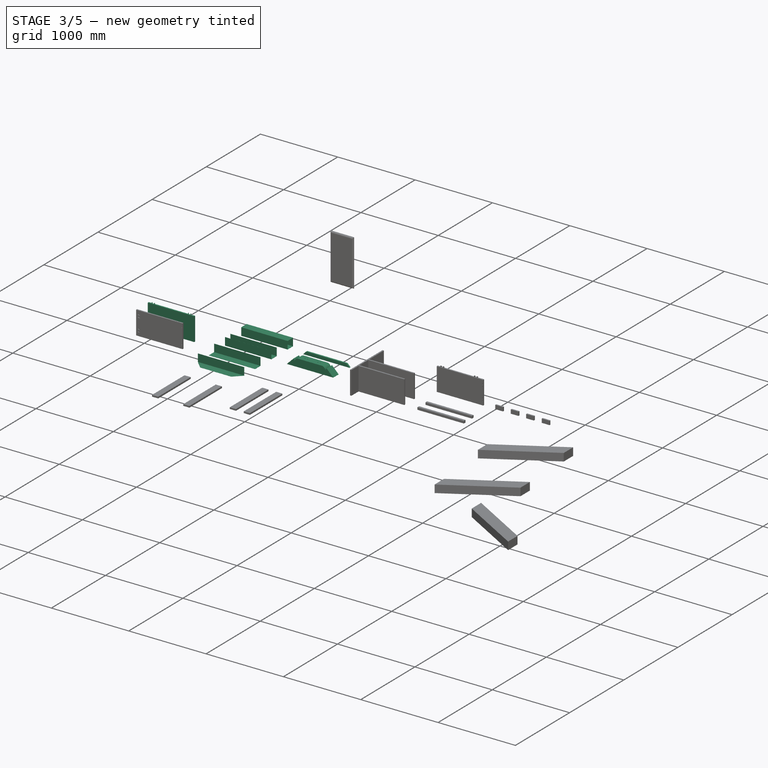
[diagram: stage 3 of 5 — iso view after this stage's code; geometry added in this stage tinted green]
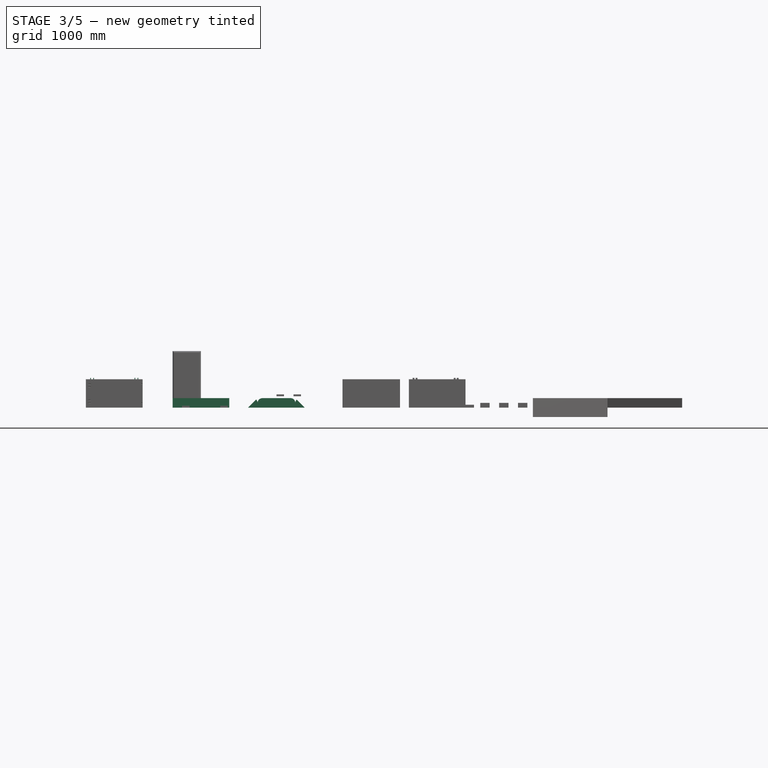
[diagram: stage 3 of 5 — front view after this stage's code; geometry added in this stage tinted green]
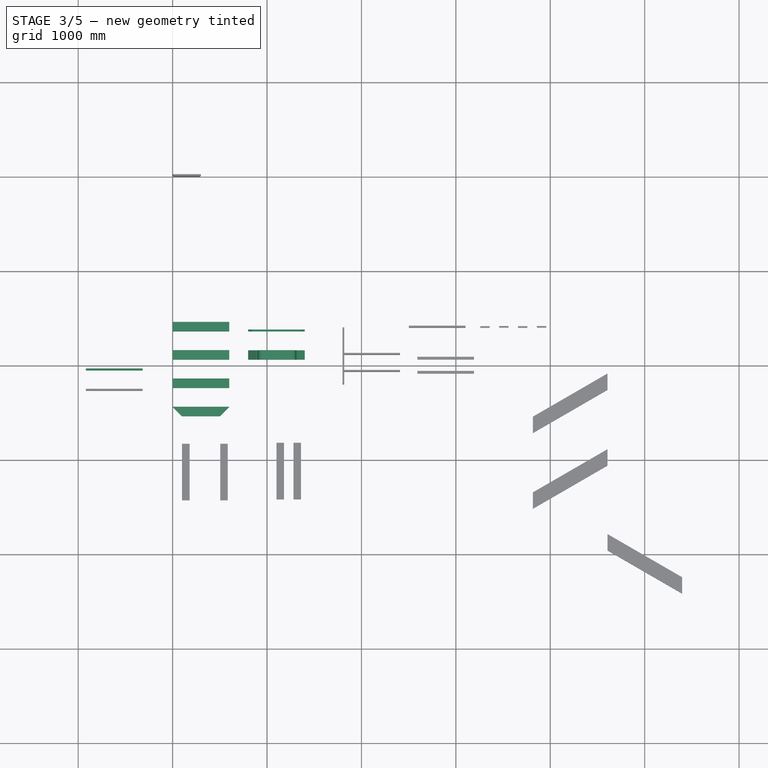
[diagram: stage 3 of 5 — top view after this stage's code; geometry added in this stage tinted green]
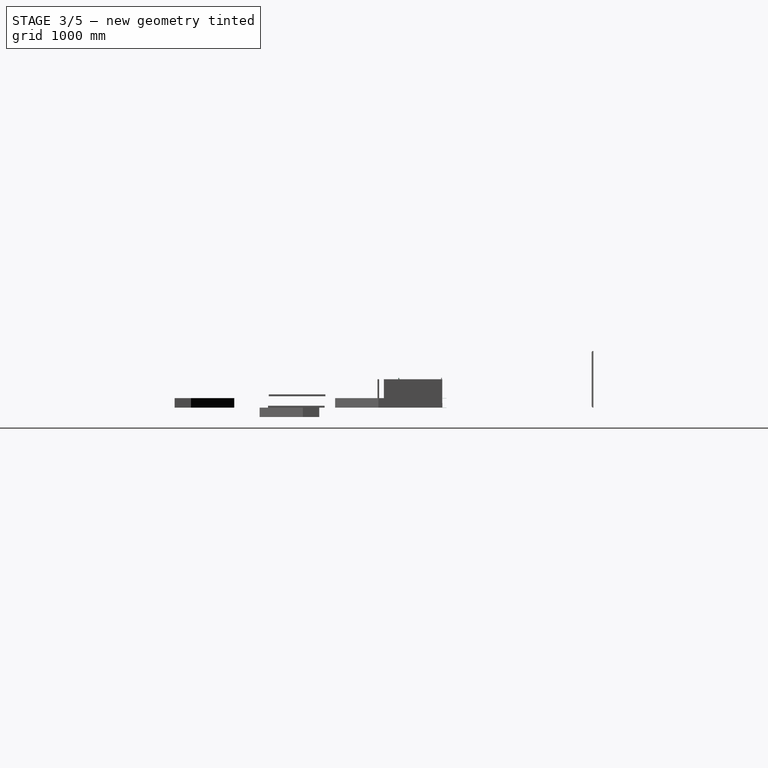
[diagram: stage 3 of 5 — right view after this stage's code; geometry added in this stage tinted green]
FEATURE [Part::Cylinder] Dowel  label="Dowel 8 x 35 mm "
  Angle = 360
  AttacherType = Attacher::AttachEngine3D
  FirstAngle = 0
  Height = 35
  Placement = pos=(-368,-2043,280) rot=(0,0,1;0rad)
  Radius = 4
  SecondAngle = 0
FEATURE [Part::Cylinder] Dowel001  label="Dowel 8 x 35 mm 001"
  Angle = 360
  AttacherType = Attacher::AttachEngine3D
  FirstAngle = 0
  Height = 35
  Placement = pos=(-400,-2043,280) rot=(0,0,1;0rad)
  Radius = 4
  SecondAngle = 0
FEATURE [Part::Cylinder] Dowel002  label="Dowel 8 x 35 mm 002"
  Angle = 360
  AttacherType = Attacher::AttachEngine3D
  FirstAngle = 0
  Height = 35
  Placement = pos=(-868,-2043,280) rot=(0,0,1;0rad)
  Radius = 4
  SecondAngle = 0
FEATURE [Part::Cylinder] Dowel003  label="Dowel 8 x 35 mm 003"
  Angle = 360
  AttacherType = Attacher::AttachEngine3D
  FirstAngle = 0
  Height = 35
  Placement = pos=(-836,-2043,280) rot=(0,0,1;0rad)
  Radius = 4
  SecondAngle = 0
FEATURE [App::DocumentObjectGroup] Group030  label="Group, Screws Clones"
  Group = -> [panelXZ002,Clone,Clone001]
FEATURE [Part::Box] panelXZ004  label="panel with dowels"
  AttacherType = Attacher::AttachEngine3D
  Height = 300
  Length = 600
  Placement = pos=(-918,-2052,0) rot=(0,0,1;0rad)
  Width = 18
FEATURE [App::DocumentObjectGroup] Group032  label="Group, Dowels"
  Group = -> [panelXZ004,Dowel,Dowel001,Dowel002,Dowel003]
FEATURE [Sketcher::SketchObject] Sketch012  label="Pattern, Construction"
  AttachmentOffset = pos=(0,-1638,0) rot=(0,0,1;0rad)
  FullyConstrained = true
  MapMode = 5
  Placement = pos=(0,-1638,0) rot=(0,0,1;0rad)
  Support = -> [XY_Plane009]
  sketch-geometry (4):
    g0: LineSegment StartX=0 StartY=100 StartZ=0 EndX=600 EndY=100 EndZ=0
    g1: LineSegment StartX=600 StartY=100 StartZ=0 EndX=600 EndY=0 EndZ=0
    g2: LineSegment StartX=600 StartY=0 StartZ=0 EndX=0 EndY=0 EndZ=0
    g3: LineSegment StartX=0 StartY=0 StartZ=0 EndX=0 EndY=100 EndZ=0
  constraints (11):
    c: Coincident(g0,g1)
    c: Coincident(g1,g2)
    c: Coincident(g2,g3)
    c: Coincident(g3,g0)
    c: Horizontal(g0)
    c: Horizontal(g2)
    c: Vertical(g1)
    c: Vertical(g3)
    c: Coincident(g2,g-1)
    c: DistanceX(g0,g0) = 600  'SizeX'
    c: DistanceY(g3,g3) = 100  'SizeY'
FEATURE [PartDesign::Pad] Pad007  label="Profile Simple"
  Direction = (0,0,1)
  Length = 100
  Length2 = 10
  Profile = -> Sketch012
  Type = 0
FEATURE [PartDesign::Thickness] Profile
  Base = -> Pad007 [Face2,Face4]
  BaseFeature = -> Pad007
  Intersection = false
  Join = 0
  Mode = 0
  Reversed = true
  SupportTransform = false
  Value = 1
FEATURE [PartDesign::Body] Body008  label="Body, Construction"
  Group = -> [Sketch012,Pad007,Profile]
  Origin = -> Origin009
  Tip = -> Profile
FEATURE [App::Part] Part  label="Part, Construction"
  Group = -> [Body008]
  Origin = -> Origin008
FEATURE [Sketcher::SketchObject] Sketch013  label="Pattern, Construction001"
  AttachmentOffset = pos=(0,-1938,0) rot=(0,0,1;0rad)
  FullyConstrained = true
  MapMode = 5
  Placement = pos=(0,-1938,0) rot=(0,0,1;0rad)
  Support = -> [XY_Plane011]
  sketch-geometry (4):
    g0: LineSegment StartX=0 StartY=100 StartZ=0 EndX=600 EndY=100 EndZ=0
    g1: LineSegment StartX=600 StartY=100 StartZ=0 EndX=600 EndY=0 EndZ=0
    g2: LineSegment StartX=600 StartY=0 StartZ=0 EndX=0 EndY=0 EndZ=0
    g3: LineSegment StartX=0 StartY=0 StartZ=0 EndX=0 EndY=100 EndZ=0
  constraints (11):
    c: Coincident(g0,g1)
    c: Coincident(g1,g2)
    c: Coincident(g2,g3)
    c: Coincident(g3,g0)
    c: Horizontal(g0)
    c: Horizontal(g2)
    c: Vertical(g1)
    c: Vertical(g3)
    c: Coincident(g2,g-1)
    c: DistanceX(g0,g0) = 600  'SizeX'
    c: DistanceY(g3,g3) = 100  'SizeY'
FEATURE [PartDesign::Pad] Pad008  label="Profile Angle 1"
  Direction = (0,0,1)
  Length = 100
  Length2 = 10
  Profile = -> Sketch013
  Type = 0
FEATURE [PartDesign::Thickness] Angle
  Base = -> Pad008 [Face2,Face4,Face6]
  BaseFeature = -> Pad008
  Intersection = false
  Join = 0
  Mode = 0
  Reversed = true
  SupportTransform = false
  Value = 1
FEATURE [PartDesign::Body] Body009  label="Body, Construction001"
  Group = -> [Sketch013,Pad008,Angle]
  Origin = -> Origin011
  Tip = -> Angle
FEATURE [App::Part] Part001  label="Part, Construction001"
  Group = -> [Body009]
  Origin = -> Origin010
FEATURE [Sketcher::SketchObject] Sketch014  label="Pattern, Construction002"
  AttachmentOffset = pos=(0,-2238,0) rot=(0,0,1;0rad)
  FullyConstrained = true
  MapMode = 5
  Placement = pos=(0,-2238,0) rot=(0,0,1;0rad)
  Support = -> [XY_Plane013]
  sketch-geometry (4):
    g0: LineSegment StartX=0 StartY=100 StartZ=0 EndX=600 EndY=100 EndZ=0
    g1: LineSegment StartX=600 StartY=100 StartZ=0 EndX=600 EndY=0 EndZ=0
    g2: LineSegment StartX=600 StartY=0 StartZ=0 EndX=0 EndY=0 EndZ=0
    g3: LineSegment StartX=0 StartY=0 StartZ=0 EndX=0 EndY=100 EndZ=0
  constraints (11):
    c: Coincident(g0,g1)
    c: Coincident(g1,g2)
    c: Coincident(g2,g3)
    c: Coincident(g3,g0)
    c: Horizontal(g0)
    c: Horizontal(g2)
    c: Vertical(g1)
    c: Vertical(g3)
    c: Coincident(g2,g-1)
    c: DistanceX(g0,g0) = 600  'SizeX'
    c: DistanceY(g3,g3) = 100  'SizeY'
FEATURE [PartDesign::Pad] Pad009  label="Profile Angle 2"
  Direction = (0,0,1)
  Length = 100
  Length2 = 10
  Profile = -> Sketch014
  Type = 0
FEATURE [PartDesign::Thickness] Angle001
  Base = -> Pad009 [Face2,Face4,Face3,Face6]
  BaseFeature = -> Pad009
  Intersection = false
  Join = 0
  Mode = 0
  Reversed = true
  SupportTransform = false
  Value = 1
FEATURE [PartDesign::Body] Body010  label="Body, Construction002"
  Group = -> [Sketch014,Pad009,Angle001]
  Origin = -> Origin013
  Tip = -> Angle001
FEATURE [App::Part] Part002  label="Part, Construction002"
  Group = -> [Body010]
  Origin = -> Origin012
FEATURE [Sketcher::SketchObject] Sketch015  label="Pattern, Construction003"
  AttachmentOffset = pos=(0,-2538,0) rot=(0,0,1;0rad)
  FullyConstrained = true
  MapMode = 5
  Placement = pos=(0,-2538,0) rot=(0,0,1;0rad)
  Support = -> [XY_Plane015]
  sketch-geometry (4):
    g0: LineSegment StartX=0 StartY=100 StartZ=0 EndX=600 EndY=100 EndZ=0
    g1: LineSegment StartX=600 StartY=100 StartZ=0 EndX=600 EndY=0 EndZ=0
    g2: LineSegment StartX=600 StartY=0 StartZ=0 EndX=0 EndY=0 EndZ=0
    g3: LineSegment StartX=0 StartY=0 StartZ=0 EndX=0 EndY=100 EndZ=0
  constraints (11):
    c: Coincident(g0,g1)
    c: Coincident(g1,g2)
    c: Coincident(g2,g3)
    c: Coincident(g3,g0)
    c: Horizontal(g0)
    c: Horizontal(g2)
    c: Vertical(g1)
    c: Vertical(g3)
    c: Coincident(g2,g-1)
    c: DistanceX(g0,g0) = 600  'SizeX'
    c: DistanceY(g3,g3) = 100  'SizeY'
FEATURE [PartDesign::Pad] Pad010  label="Profile Angle 45 Cut"
  Direction = (0,0,1)
  Length = 100
  Length2 = 10
  Profile = -> Sketch015
  Type = 0
FEATURE [PartDesign::Thickness] Angle002
  Base = -> Pad010 [Face2,Face4,Face3,Face6]
  BaseFeature = -> Pad010
  Intersection = false
  Join = 0
  Mode = 0
  Reversed = true
  SupportTransform = false
  Value = 1
FEATURE [PartDesign::Chamfer] Angle45Cut
  Angle = 45
  Base = -> Angle002 [Edge11,Edge13]
  BaseFeature = -> Angle002
  ChamferType = 0
  FlipDirection = false
  Size = 98.99
  Size2 = 1
  SupportTransform = false
  UseAllEdges = false
FEATURE [PartDesign::Body] Body011  label="Body, Construction003"
  Group = -> [Sketch015,Pad010,Angle002,Angle45Cut]
  Origin = -> Origin015
  Tip = -> Angle45Cut
FEATURE [App::Part] Part003  label="Part, Construction003"
  Group = -> [Body011]
  Origin = -> Origin014
FEATURE [App::DocumentObjectGroup] Group033  label="Group, Profiles"
  Group = -> [Part,Part001,Part002,Part003]
FEATURE [Sketcher::SketchObject] Sketch016  label="Pattern, Frame"
  AttachmentOffset = pos=(800,0,1618) rot=(0,0,1;0rad)
  FullyConstrained = true
  MapMode = 5
  Placement = pos=(800,-1618,-3.593e-13) rot=(1,0,0;1.5708rad)
  Support = -> [XZ_Plane017]
  sketch-geometry (4):
    g0: LineSegment StartX=0 StartY=40 StartZ=0 EndX=600 EndY=40 EndZ=0
    g1: LineSegment StartX=600 StartY=40 StartZ=0 EndX=600 EndY=0 EndZ=0
    g2: LineSegment StartX=600 StartY=0 StartZ=0 EndX=0 EndY=0 EndZ=0
    g3: LineSegment StartX=0 StartY=0 StartZ=0 EndX=0 EndY=40 EndZ=0
  constraints (11):
    c: Coincident(g0,g1)
    c: Coincident(g1,g2)
    c: Coincident(g2,g3)
    c: Coincident(g3,g0)
    c: Horizontal(g0)
    c: Horizontal(g2)
    c: Vertical(g1)
    c: Vertical(g3)
    c: Coincident(g2,g-1)
    c: DistanceX(g0,g0) = 600  'SizeX'
    c: DistanceY(g3,g3) = 40  'SizeY'
FEATURE [PartDesign::Pad] Pad011  label="Frame"
  Direction = (0,-1,2e-16)
  Length = 20
  Length2 = 10
  Placement = pos=(0,0,0) rot=(1,0,0;1.5708rad)
  Profile = -> Sketch016
  Type = 0
FEATURE [PartDesign::Chamfer] Frame45Cut
  Angle = 45
  Base = -> Pad011 [Edge1,Edge2]
  BaseFeature = -> Pad011
  ChamferType = 0
  FlipDirection = false
  Placement = pos=(0,0,0) rot=(1,0,0;1.5708rad)
  Size = 39.99
  Size2 = 1
  SupportTransform = false
  UseAllEdges = false
FEATURE [PartDesign::Body] Body012  label="Body, Frame"
  Group = -> [Sketch016,Pad011,Frame45Cut]
  Origin = -> Origin017
  Tip = -> Frame45Cut
FEATURE [App::Part] Part004  label="Part, Frame"
  Group = -> [Body012]
  Origin = -> Origin016
FEATURE [Sketcher::SketchObject] Sketch017  label="Pattern, Frame001"
  AttachmentOffset = pos=(800,-1938,0) rot=(0,0,1;0rad)
  FullyConstrained = true
  MapMode = 5
  Placement = pos=(800,-1938,0) rot=(0,0,1;0rad)
  Support = -> [XY_Plane019]
  sketch-geometry (4):
    g0: LineSegment StartX=0 StartY=100 StartZ=0 EndX=600 EndY=100 EndZ=0
    g1: LineSegment StartX=600 StartY=100 StartZ=0 EndX=600 EndY=0 EndZ=0
    g2: LineSegment StartX=600 StartY=0 StartZ=0 EndX=0 EndY=0 EndZ=0
    g3: LineSegment StartX=0 StartY=0 StartZ=0 EndX=0 EndY=100 EndZ=0
  constraints (11):
    c: Coincident(g0,g1)
    c: Coincident(g1,g2)
    c: Coincident(g2,g3)
    c: Coincident(g3,g0)
    c: Horizontal(g0)
    c: Horizontal(g2)
    c: Vertical(g1)
    c: Vertical(g3)
    c: Coincident(g2,g-1)
    c: DistanceX(g0,g0) = 600  'SizeX'
    c: DistanceY(g3,g3) = 100  'SizeY'
FEATURE [PartDesign::Pad] Pad012  label="Frame Table Foot"
  Direction = (0,0,1)
  Length = 100
  Length2 = 10
  Profile = -> Sketch017
  Type = 0
FEATURE [PartDesign::Chamfer] Frame45Cut001
  Angle = 45
  Base = -> Pad012 [Edge12,Edge7]
  BaseFeature = -> Pad012
  ChamferType = 0
  FlipDirection = false
  Size = 99.99
  Size2 = 1
  SupportTransform = false
  UseAllEdges = false
FEATURE [Sketcher::SketchObject] routerPattern
  FullyConstrained = true
  Placement = pos=(1300.01,-1888,100) rot=(1,0,0;1.5708rad)
  sketch-geometry (4):
    g0: ArcOfCircle CenterX=49.9999 CenterY=-49.9999 CenterZ=0 NormalX=0 NormalY=0 NormalZ=1 AngleXU=0 Radius=49.9999 StartAngle=1.5708 EndAngle=3.14159
    g1: ArcOfCircle CenterX=-49.9999 CenterY=49.9999 CenterZ=0 NormalX=0 NormalY=0 NormalZ=1 AngleXU=0 Radius=49.9999 StartAngle=4.71239 EndAngle=6.28319
    g2: ArcOfCircle CenterX=49.9999 CenterY=49.9999 CenterZ=0 NormalX=0 NormalY=0 NormalZ=1 AngleXU=0 Radius=49.9999 StartAngle=3.14159 EndAngle=4.71239
    g3: ArcOfCircle CenterX=-49.9999 CenterY=-49.9999 CenterZ=0 NormalX=0 NormalY=0 NormalZ=1 AngleXU=0 Radius=49.9999 StartAngle=6.28318 EndAngle=7.85398
  constraints (16):
    c: Equal(g3,g1)
    c: Equal(g1,g2)
    c: Equal(g2,g0)
    c: Vertical(g0,g2)
    c: Horizontal(g3,g0)
    c: Vertical(g1,g3)
    c: Horizontal(g1,g2)
    c: Coincident(g1,g2)
    c: Coincident(g0,g2)
    c: Coincident(g3,g0)
    c: Coincident(g3,g1)
    c: PointOnObject(g1,g-1)
    c: PointOnObject(g1,g-2)
    c: DistanceY(g0,g-1) = 50
    c: Vertical(g0,g0)
    c: Horizontal(g1,g1)
FEATURE [PartDesign::Pocket] router  label="RoundOver2 "
  BaseFeature = -> Frame45Cut001
  Direction = (0,1,-2e-16)
  Length = 5
  Length2 = 5
  Midplane = true
  Profile = -> routerPattern
  Type = 1
FEATURE [Sketcher::SketchObject] routerPattern001
  FullyConstrained = true
  Placement = pos=(899.99,-1888,100) rot=(1,0,0;1.5708rad)
  sketch-geometry (4):
    g0: ArcOfCircle CenterX=50 CenterY=-50 CenterZ=0 NormalX=0 NormalY=0 NormalZ=1 AngleXU=0 Radius=50 StartAngle=1.5708 EndAngle=3.14159
    g1: ArcOfCircle CenterX=-50 CenterY=50 CenterZ=0 NormalX=0 NormalY=0 NormalZ=1 AngleXU=0 Radius=50 StartAngle=4.71239 EndAngle=6.28319
    g2: ArcOfCircle CenterX=50 CenterY=50 CenterZ=0 NormalX=0 NormalY=0 NormalZ=1 AngleXU=0 Radius=50 StartAngle=3.14159 EndAngle=4.71239
    g3: ArcOfCircle CenterX=-50 CenterY=-50 CenterZ=0 NormalX=0 NormalY=0 NormalZ=1 AngleXU=0 Radius=50 StartAngle=6.28318 EndAngle=7.85398
  constraints (16):
    c: Equal(g3,g1)
    c: Equal(g1,g2)
    c: Equal(g2,g0)
    c: Vertical(g0,g2)
    c: Horizontal(g3,g0)
    c: Vertical(g1,g3)
    c: Horizontal(g1,g2)
    c: Coincident(g1,g2)
    c: Coincident(g0,g2)
    c: Coincident(g3,g0)
    c: Coincident(g3,g1)
    c: PointOnObject(g1,g-1)
    c: PointOnObject(g1,g-2)
    c: DistanceY(g0,g-1) = 50
    c: Vertical(g0,g0)
    c: Horizontal(g1,g1)
FEATURE [PartDesign::Pocket] router001  label="RoundOver2 001"
  BaseFeature = -> router
  Direction = (0,1,-2e-16)
  Length = 5
  Length2 = 5
  Midplane = true
  Profile = -> routerPattern001
  Type = 1
FEATURE [Sketcher::SketchObject] Sketch018
  FullyConstrained = true
  MapMode = 5
  Placement = pos=(1200.01,-1888,100) rot=(0,0,1;0rad)
  sketch-geometry (1):
    g0: Circle CenterX=0 CenterY=0 CenterZ=0 NormalX=0 NormalY=0 NormalZ=1 AngleXU=0 Radius=5
  constraints (2):
    c: Coincident(g0,g-1)
    c: Diameter(g0) = 10  'Hole00Diameter'
FEATURE [PartDesign::Hole] Hole
  BaseFeature = -> router001
  CustomThreadClearance = 0
  Depth = 25
  DepthType = 0
  Diameter = 10
  DrillForDepth = true
  DrillPoint = 1
  DrillPointAngle = 118
  HoleCutCountersinkAngle = 90
  HoleCutCustomValues = false
  HoleCutDepth = 25
  HoleCutDiameter = 10
  HoleCutType = 0
  ModelThread = false
  Profile = -> Sketch018
  Tapered = false
  TaperedAngle = 90
  ThreadClass = 0
  ThreadDepth = 25
  ThreadDepthType = 0
  ThreadDirection = 0
  ThreadFit = 0
  ThreadSize = 0
  ThreadType = 0
  Threaded = false
  UseCustomThreadClearance = false
FEATURE [Sketcher::SketchObject] Sketch019
  FullyConstrained = true
  MapMode = 5
  Placement = pos=(1168.01,-1888,100) rot=(0,0,1;0rad)
  sketch-geometry (1):
    g0: Circle CenterX=0 CenterY=0 CenterZ=0 NormalX=0 NormalY=0 NormalZ=1 AngleXU=0 Radius=5
  constraints (2):
    c: Coincident(g0,g-1)
    c: Diameter(g0) = 10  'Hole00Diameter'
FEATURE [PartDesign::Hole] Hole001
  BaseFeature = -> Hole
  CustomThreadClearance = 0
  Depth = 25
  DepthType = 0
  Diameter = 10
  DrillForDepth = true
  DrillPoint = 1
  DrillPointAngle = 118
  HoleCutCountersinkAngle = 90
  HoleCutCustomValues = false
  HoleCutDepth = 25
  HoleCutDiameter = 10
  HoleCutType = 0
  ModelThread = false
  Profile = -> Sketch019
  Tapered = false
  TaperedAngle = 90
  ThreadClass = 0
  ThreadDepth = 25
  ThreadDepthType = 0
  ThreadDirection = 0
  ThreadFit = 0
  ThreadSize = 0
  ThreadType = 0
  Threaded = false
  UseCustomThreadClearance = false
FEATURE [Sketcher::SketchObject] Sketch020
  FullyConstrained = true
  MapMode = 5
  Placement = pos=(999.99,-1888,100) rot=(0,0,1;0rad)
  sketch-geometry (1):
    g0: Circle CenterX=0 CenterY=0 CenterZ=0 NormalX=0 NormalY=0 NormalZ=1 AngleXU=0 Radius=5
  constraints (2):
    c: Coincident(g0,g-1)
    c: Diameter(g0) = 10  'Hole00Diameter'
FEATURE [PartDesign::Hole] Hole002
  BaseFeature = -> Hole001
  CustomThreadClearance = 0
  Depth = 25
  DepthType = 0
  Diameter = 10
  DrillForDepth = true
  DrillPoint = 1
  DrillPointAngle = 118
  HoleCutCountersinkAngle = 90
  HoleCutCustomValues = false
  HoleCutDepth = 25
  HoleCutDiameter = 10
  HoleCutType = 0
  ModelThread = false
  Profile = -> Sketch020
  Tapered = false
  TaperedAngle = 90
  ThreadClass = 0
  ThreadDepth = 25
  ThreadDepthType = 0
  ThreadDirection = 0
  ThreadFit = 0
  ThreadSize = 0
  ThreadType = 0
  Threaded = false
  UseCustomThreadClearance = false
FEATURE [Sketcher::SketchObject] Sketch021
  FullyConstrained = true
  MapMode = 5
  Placement = pos=(1031.99,-1888,100) rot=(0,0,1;0rad)
  sketch-geometry (1):
    g0: Circle CenterX=0 CenterY=0 CenterZ=0 NormalX=0 NormalY=0 NormalZ=1 AngleXU=0 Radius=5
  constraints (2):
    c: Coincident(g0,g-1)
    c: Diameter(g0) = 10  'Hole00Diameter'
FEATURE [PartDesign::Hole] Hole003
  BaseFeature = -> Hole002
  CustomThreadClearance = 0
  Depth = 25
  DepthType = 0
  Diameter = 10
  DrillForDepth = true
  DrillPoint = 1
  DrillPointAngle = 118
  HoleCutCountersinkAngle = 90
  HoleCutCustomValues = false
  HoleCutDepth = 25
  HoleCutDiameter = 10
  HoleCutType = 0
  ModelThread = false
  Profile = -> Sketch021
  Tapered = false
  TaperedAngle = 90
  ThreadClass = 0
  ThreadDepth = 25
  ThreadDepthType = 0
  ThreadDirection = 0
  ThreadFit = 0
  ThreadSize = 0
  ThreadType = 0
  Threaded = false
  UseCustomThreadClearance = false
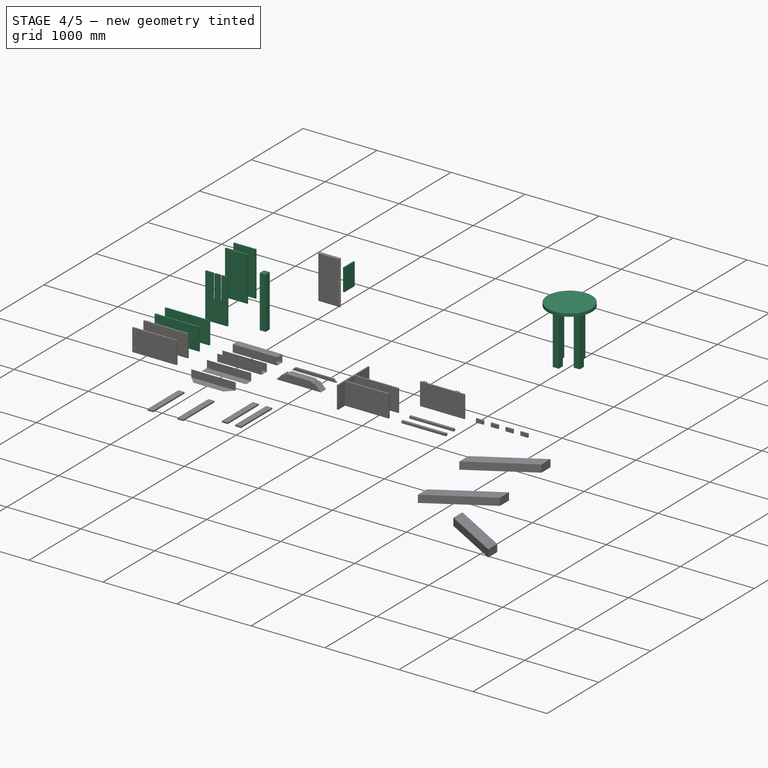
[diagram: stage 4 of 5 — iso view after this stage's code; geometry added in this stage tinted green]
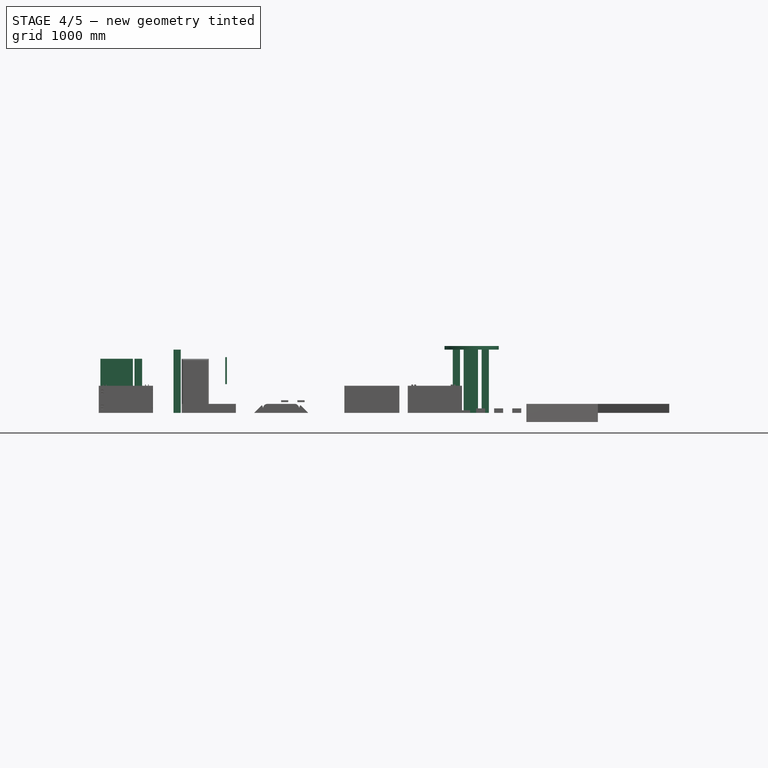
[diagram: stage 4 of 5 — front view after this stage's code; geometry added in this stage tinted green]
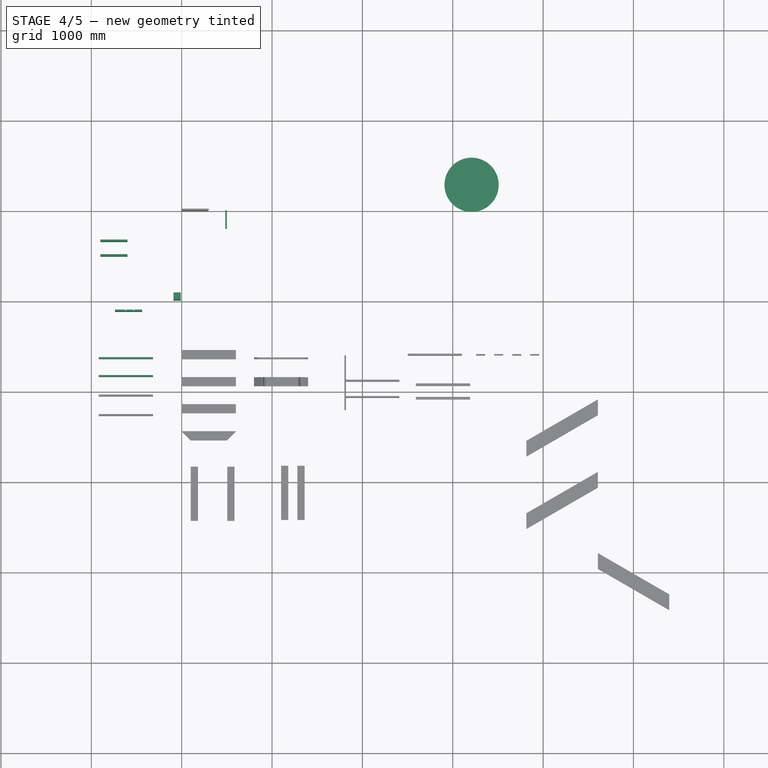
[diagram: stage 4 of 5 — top view after this stage's code; geometry added in this stage tinted green]
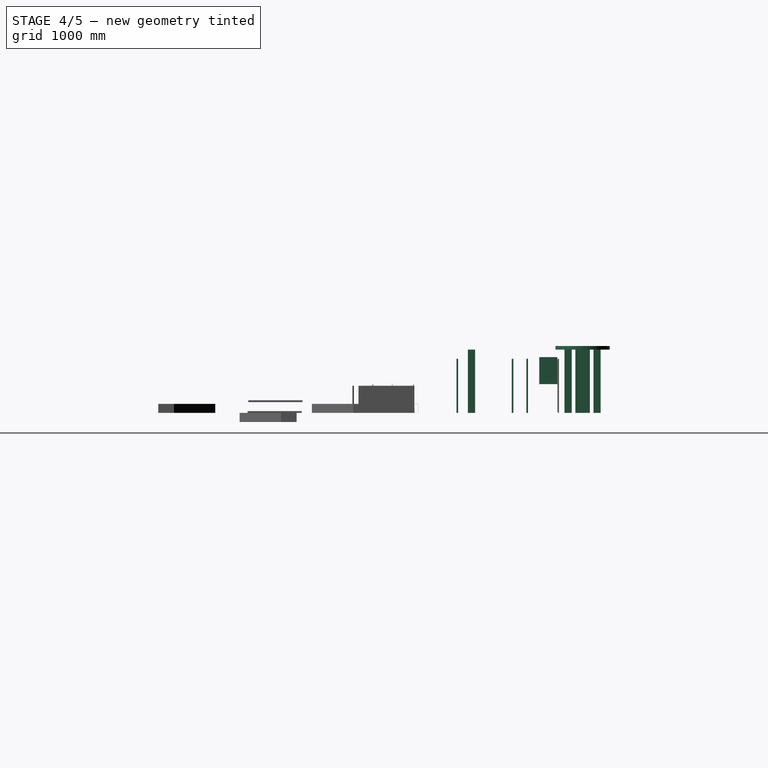
[diagram: stage 4 of 5 — right view after this stage's code; geometry added in this stage tinted green]
FEATURE [Sketcher::SketchObject] Sketch005  label="Sketch006"
  AttachmentOffset = pos=(0,-1000,0) rot=(0,0,1;0rad)
  FullyConstrained = true
  MapMode = 5
  Placement = pos=(0,-1000,0) rot=(0,0,1;0rad)
  Support = -> [XY_Plane005]
  sketch-geometry (4):
    g0: LineSegment StartX=-90 StartY=90 StartZ=0 EndX=-10 EndY=90 EndZ=0
    g1: LineSegment StartX=-10 StartY=90 StartZ=0 EndX=-10 EndY=10 EndZ=0
    g2: LineSegment StartX=-10 StartY=10 StartZ=0 EndX=-90 EndY=10 EndZ=0
    g3: LineSegment StartX=-90 StartY=10 StartZ=0 EndX=-90 EndY=90 EndZ=0
  constraints (12):
    c: Coincident(g0,g1)
    c: Coincident(g1,g2)
    c: Coincident(g2,g3)
    c: Coincident(g3,g0)
    c: Horizontal(g0)
    c: Horizontal(g2)
    c: Vertical(g1)
    c: Vertical(g3)
    c: DistanceY(g-1,g1) = 10
    c: DistanceX(g1,g-1) = 10
    c: DistanceX(g0,g0) = 80
    c: DistanceY(g3,g3) = 80
FEATURE [PartDesign::Pad] Pad005  label="Array Polar Pad"
  AllowMultiFace = false
  Direction = (1,1,1)
  Length = 700
  Length2 = 100
  Profile = -> Sketch005
  Type = 0
FEATURE [App::DocumentObjectGroup] Group023  label="Legs"
  Group = -> [Group011,Group015,Body004,Body005]
FEATURE [Part::Box] Box039  label="Array Polar Cube"
  AttacherType = Attacher::AttachEngine3D
  Height = 700
  Length = 80
  Placement = pos=(3200,400,0) rot=(0,0,1;0rad)
  Width = 80
FEATURE [App::DocumentObjectGroup] Group024  label="Array Polar Cube Parent"
  Group = -> [Box039]
FEATURE [Part::FeaturePython] Array003  # Draft array (typed FeaturePython)
  AlwaysSyncPlacement = false
  Angle = 360
  ArrayType = 1
  Axis = (0,0,1)
  Base = -> Box039
  Center = (3200,280,0)
  Count = 4
  ExpandArray = false
  Fuse = false
  IntervalAxis = (0,0,0)
  IntervalX = (50,0,0)
  IntervalY = (0,50,0)
  IntervalZ = (0,0,50)
  NumberCircles = 3
  NumberPolar = 4
  NumberX = 2
  NumberY = 2
  NumberZ = 1
  PlacementList = 4 placements: [(3200,400,0),(3080,280,0),(3200,160,0),(3320,280,0)]
  RadialDistance = 50
  ScaleList = (4) [(1,1,1),(1,1,1),(1,1,1),(1,1,1)]
  Symmetry = 1
  TangentialDistance = 25
FEATURE [App::DocumentObjectGroup] Group025  label="Shelfs"
  Group = -> [Group014,Body,Body001,Body002,Body003]
FEATURE [App::DocumentObjectGroup] Group026  label="Transform results"
  Group = -> [Array,Array001,Array002,Array003]
FEATURE [App::DocumentObjectGroup] Group028  label="group folder"
FEATURE [App::DocumentObjectGroup] Group027  label="empty"
  Group = -> [Group028]
FEATURE [Part::Box] Box040  label="PMirror 2 Cube"
  AttacherType = Attacher::AttachEngine3D
  Height = 300
  Length = 18
  Placement = pos=(200,-200,318) rot=(0,0,1;0rad)
  Width = 200
FEATURE [Part::Mirroring] Part__Mirroring  label="Side 3 (Mirror #1)"
  Base = (0,200,0)
  Normal = (1,0,0)
  Placement = pos=(700,0,0) rot=(0,0,1;0rad)
  Source = -> Box040
FEATURE [App::DocumentObjectGroup] Group009  label="Side"
  Group = -> [Box024,Box025,Box040,Part__Mirroring]
FEATURE [App::DocumentObjectGroup] Group  label="White furniture"
  Group = -> [Group009,Group010,Group008]
FEATURE [Sketcher::SketchObject] Sketch006  label="Sketch007"
  AttachmentOffset = pos=(0,0,700) rot=(0,0,1;0rad)
  FullyConstrained = false
  MapMode = 5
  Placement = pos=(0,0,700) rot=(0,0,1;0rad)
  Support = -> [XY_Plane006]
  sketch-geometry (1):
    g0: Circle CenterX=3208.45 CenterY=279.77 CenterZ=0 NormalX=0 NormalY=0 NormalZ=1 AngleXU=0 Radius=300
  constraints (1):
    c: Radius(g0) = 300  'This is my round table top radius'
FEATURE [PartDesign::Pad] Pad006  label="Table Top"
  Direction = (1,1,1)
  Length = 40
  Length2 = 100
  Profile = -> Sketch006
  Type = 0
FEATURE [PartDesign::Body] Body006  label="Table Top Parent Body"
  Group = -> [Sketch006,Pad006]
  Origin = -> Origin006
  Tip = -> Pad006
FEATURE [App::DocumentObjectGroup] Group002  label="Black furniture"
  Group = -> [Group005,Body006,Group024]
FEATURE [App::DocumentObjectGroup] Group001  label="Furniture parts"
  Group = -> [Group002,Group,Group017,Group019,Group023,Group025,Group026,Box032]
FEATURE [Part::Box] panelZX  label="LinkGroup, panelZX"
  AttacherType = Attacher::AttachEngine3D
  Height = 600
  Length = 300
  Placement = pos=(-900,-504,0) rot=(0,0,1;0rad)
  Width = 18
FEATURE [Part::Box] panelZX001  label="LinkGroup, panelZX001"
  AttacherType = Attacher::AttachEngine3D
  Height = 600
  Length = 300
  Placement = pos=(-900,-342,0) rot=(0,0,1;0rad)
  Width = 18
FEATURE [App::LinkGroup] LinkGroup
  ElementList = -> [panelZX,panelZX001]
  LinkMode = 0
FEATURE [App::Link] Link
  LinkPlacement = pos=(-600,0,0) rot=(0,0,1;0rad)
  LinkedObject = -> LinkGroup
  Placement = pos=(-600,0,0) rot=(0,0,1;0rad)
FEATURE [Part::Box] panelZX002  label="PartCut, Base 1"
  AttacherType = Attacher::AttachEngine3D
  Height = 600
  Length = 300
  Placement = pos=(-738,-1116,0) rot=(0,0,1;0rad)
  Width = 18
FEATURE [Part::Box] panelZY  label="PartCut, Tool 1"
  AttacherType = Attacher::AttachEngine3D
  Height = 600
  Length = 18
  Placement = pos=(-540,-1260,288) rot=(0,0,1;0rad)
  Width = 300
FEATURE [Part::Box] panelZY001  label="PartCut, Tool 2"
  AttacherType = Attacher::AttachEngine3D
  Height = 600
  Length = 18
  Placement = pos=(-630,-1260,288) rot=(0,0,1;0rad)
  Width = 300
FEATURE [Part::Cut] Cut  label="PartCut, Cut, Base 2"
  Base = -> panelZX002
  Tool = -> panelZY
FEATURE [Part::Cut] Cut001  label="PartCut"
  Base = -> Cut
  Tool = -> panelZY001
FEATURE [App::Link] Link001  label="Link, Cut"
  LinkPlacement = pos=(-600,0,0) rot=(0,0,1;0rad)
  LinkedObject = -> Cut001
  Placement = pos=(-600,0,0) rot=(0,0,1;0rad)
FEATURE [Part::Box] panelXZ  label="panel with screw links"
  AttacherType = Attacher::AttachEngine3D
  Height = 300
  Length = 600
  Placement = pos=(-918,-1638,0) rot=(0,0,1;0rad)
  Width = 18
FEATURE [Spreadsheet::Sheet] Spreadsheet  label="settings"
  cells = A1='Settings (set here):; A2='Screw diameter; B2(sdia)=4; A3='Screw height; B3(sheight)=40; A4='Head diameter; B4(hdia)=7.74; A5='No thread height; B5(threadfree)=9; A6='Bit size; B6(bitsize)=4.26; A7='Adjust if needed:; A8='Thread jump; B8(tjump)=1.9; A9='Head height 1; B9(hheight1)=0.5; A10='Head height 2; B10(hheight2)=2.5; A11='Bit pocket thickness; B11(bitthick)=1; A12='Calculated (not change):; A13='Screw radius; B13(sr)==sdia / 2; A14='Head radius; B14(hr)==hdia / 2; A15='Screw core diameter; B15(coredia)==sdia - 1; A16='Screw core radius; B16(corer)==coredia / 2; A17='Spike size; B17(spikesize)==tjump * 2; A18='Thread core height (no spike, no head); B18(tcoreheight)==sheight - spikesize - hheight1 - hheight2; A19='Thread height; B19(theight)==tcoreheight - threadfree
FEATURE [Sketcher::SketchObject] Sketch007  label="Core, Pattern"
  FullyConstrained = true
  MapMode = 5
  Placement = pos=(0,0,0) rot=(1,0,0;1.5708rad)
  Support = -> [XZ_Plane007]
  expr: Constraints[10] = Spreadsheet.corer
  expr: Constraints[11] = 2 * Spreadsheet.tjump
  expr: Constraints[12] = Spreadsheet.sheight
  expr: Constraints[13] = Spreadsheet.hheight1
  expr: Constraints[14] = Spreadsheet.hheight2
  expr: Constraints[15] = Spreadsheet.hr
  expr: Constraints[16] = Spreadsheet.hheight1
  sketch-geometry (6):
    g0: LineSegment StartX=0 StartY=0 StartZ=0 EndX=1.5 EndY=3.8 EndZ=0
    g1: LineSegment StartX=1.5 StartY=3.8 StartZ=0 EndX=1.5 EndY=37 EndZ=0
    g2: LineSegment StartX=1.5 StartY=37 StartZ=0 EndX=2 EndY=37.5 EndZ=0
    g3: LineSegment StartX=2 StartY=37.5 StartZ=0 EndX=3.87 EndY=40 EndZ=0
    g4: LineSegment StartX=3.87 StartY=40 StartZ=0 EndX=0 EndY=40 EndZ=0
    g5: LineSegment StartX=0 StartY=40 StartZ=0 EndX=0 EndY=0 EndZ=0
  constraints (17):
    c: Coincident(g-1,g0)
    c: Coincident(g0,g1)
    c: Vertical(g1)
    c: Coincident(g1,g2)
    c: Coincident(g2,g3)
    c: Coincident(g3,g4)
    c: PointOnObject(g4,g-2)
    c: Horizontal(g4)
    c: Coincident(g4,g5)
    c: Coincident(g5,g0)
    c: DistanceX(g0,g0) = 1.5
    c: DistanceY(g0,g0) = 3.8
    c: DistanceY(g5,g5) = 40
    c: DistanceY(g1,g2) = 0.5
    c: DistanceY(g2,g3) = 2.5
    c: DistanceX(g4,g3) = 3.87
    c: DistanceX(g1,g2) = 0.5
FEATURE [PartDesign::Revolution] Revolution  label="Core"
  Angle = 360
  Axis = (0,-2e-16,1)
  Base = (0,0,0)
  Placement = pos=(0,0,0) rot=(1,0,0;1.5708rad)
  Profile = -> Sketch007
  ReferenceAxis = -> Sketch007 [V_Axis]
  Reversed = true
FEATURE [Sketcher::SketchObject] Sketch008  label="Thread, Pattern"
  FullyConstrained = true
  MapMode = 5
  Placement = pos=(0,0,0) rot=(1,0,0;1.5708rad)
  Support = -> [XZ_Plane007]
  expr: Constraints[2] = Spreadsheet.spikesize
  expr: Constraints[3] = Spreadsheet.corer
  sketch-geometry (3):
    g0: LineSegment StartX=1.5 StartY=3.675 StartZ=0 EndX=2 EndY=3.8 EndZ=0
    g1: LineSegment StartX=2 StartY=3.8 StartZ=0 EndX=1.5 EndY=3.925 EndZ=0
    g2: LineSegment StartX=1.5 StartY=3.925 StartZ=0 EndX=1.5 EndY=3.675 EndZ=0
  constraints (9):
    c: Coincident(g0,g1)
    c: Equal(g0,g1)
    c: DistanceY(g-1,g0) = 3.8
    c: DistanceX(g-1,g0) = 1.5
    c: DistanceX(g0,g0) = 0.5
    c: DistanceY(g0,g1) = 0.25
    c: Vertical(g1,g0)
    c: Coincident(g2,g1)
    c: Coincident(g2,g0)
FEATURE [PartDesign::AdditiveHelix] AdditiveHelix  label="Thread, Core"
  Angle = 0
  Axis = (0,-2e-16,1)
  Base = (0,0,0)
  BaseFeature = -> Revolution
  Growth = 0
  HasBeenEdited = true
  Height = 20.4
  LeftHanded = false
  Mode = 0
  Outside = false
  Pitch = 1.9
  Placement = pos=(0,0,0) rot=(1,0,0;1.5708rad)
  Profile = -> Sketch008
  ReferenceAxis = -> Sketch008 [V_Axis]
  Turns = 10.7368
  expr: Height = Spreadsheet.theight - Spreadsheet.spikesize
  expr: Pitch = Spreadsheet.tjump
FEATURE [PartDesign::AdditiveHelix] AdditiveHelix001  label="Thread, Spike"
  Angle = -30
  Axis = (0,-2e-16,1)
  Base = (0,0,0)
  BaseFeature = -> AdditiveHelix
  Growth = -1.09697
  HasBeenEdited = true
  Height = 2.53333
  LeftHanded = false
  Mode = 0
  Outside = false
  Pitch = 1.9
  Placement = pos=(0,0,0) rot=(1,0,0;1.5708rad)
  Profile = -> Sketch008
  ReferenceAxis = -> Sketch008 [V_Axis]
  Reversed = true
  Turns = 1.33333
  expr: Height = 2 * Spreadsheet.spikesize / 3
  expr: Pitch = Spreadsheet.tjump
FEATURE [Sketcher::SketchObject] Sketch009  label="Bit, Pattern 1"
  FullyConstrained = true
  MapMode = 5
  Placement = pos=(0,0,0) rot=(0.57735,0.57735,0.57735;2.0944rad)
  Support = -> [YZ_Plane007]
  expr: Constraints[16] = Spreadsheet.hheight2 / 4
  expr: Constraints[6] = Spreadsheet.coredia
  expr: Constraints[7] = Spreadsheet.sheight
  expr: Constraints[8] = Spreadsheet.bitsize
  expr: Constraints[9] = Spreadsheet.hheight2 / 2
  sketch-geometry (6):
    g0: LineSegment StartX=-2.13 StartY=40 StartZ=0 EndX=2.13 EndY=40 EndZ=0
    g1: LineSegment StartX=2.13 StartY=40 StartZ=0 EndX=1.5 EndY=38.75 EndZ=0
    g2: LineSegment StartX=1.5 StartY=38.75 StartZ=0 EndX=0.875 EndY=38.75 EndZ=0
    g3: LineSegment StartX=-1.5 StartY=38.75 StartZ=0 EndX=-2.13 EndY=40 EndZ=0
    g4: ArcOfCircle CenterX=0 CenterY=40 CenterZ=0 NormalX=0 NormalY=0 NormalZ=1 AngleXU=0 Radius=1.52582 StartAngle=4.10166 EndAngle=5.32311
    g5: LineSegment StartX=-0.875 StartY=38.75 StartZ=0 EndX=-1.5 EndY=38.75 EndZ=0
  constraints (17):
    c: Coincident(g0,g1)
    c: Coincident(g1,g2)
    c: Coincident(g5,g3)
    c: Coincident(g3,g0)
    c: Symmetric(g1,g5,g-2)
    c: Symmetric(g0,g0,g-2)
    c: DistanceX(g5,g2) = 3
    c: DistanceY(g-1,g0) = 40
    c: DistanceX(g0,g0) = 4.26
    c: DistanceY(g1,g0) = 1.25
    c: Horizontal(g4,g0)
    c: PointOnObject(g4,g-2)
    c: Coincident(g2,g4)
    c: Coincident(g5,g4)
    c: Horizontal(g3,g4)
    c: Horizontal(g4,g2)
    c: DistanceX(g2,g1) = 0.625
FEATURE [PartDesign::Pocket] Pocket  label="Bit, Pocket 1"
  BaseFeature = -> AdditiveHelix001
  Direction = (-1,2e-16,-3e-16)
  Length = 1
  Length2 = 5
  Midplane = true
  Placement = pos=(0,0,0) rot=(1,0,0;1.5708rad)
  Profile = -> Sketch009
  ReferenceAxis = -> Sketch009 [N_Axis]
  Type = 0
FEATURE [Sketcher::SketchObject] Sketch010  label="Bit, Line, Pattern 1"
  AttachmentOffset = pos=(0,0,0) rot=(0,1,0;0.785398rad)
  FullyConstrained = true
  MapMode = 5
  Placement = pos=(0,0,0) rot=(0.281085,0.678598,0.678598;2.59356rad)
  Support = -> [YZ_Plane007]
  expr: Constraints[10] = Spreadsheet.sheight
  expr: Constraints[6] = Spreadsheet.bitsize
  sketch-geometry (4):
    g0: LineSegment StartX=2.13 StartY=40 StartZ=0 EndX=2.13 EndY=39.9 EndZ=0
    g1: LineSegment StartX=2.13 StartY=39.9 StartZ=0 EndX=-2.13 EndY=39.9 EndZ=0
    g2: LineSegment StartX=-2.13 StartY=39.9 StartZ=0 EndX=-2.13 EndY=40 EndZ=0
    g3: LineSegment StartX=-2.13 StartY=40 StartZ=0 EndX=2.13 EndY=40 EndZ=0
  constraints (11):
    c: Coincident(g0,g1)
    c: Coincident(g1,g2)
    c: Coincident(g3,g2)
    c: Coincident(g3,g0)
    c: Equal(g1,g3)
    c: Equal(g0,g2)
    c: DistanceX(g3,g3) = 4.26
    c: Vertical(g2)
    c: Symmetric(g1,g0,g-2)
    c: DistanceY(g0,g0) = 0.1
    c: DistanceY(g-1,g0) = 40
FEATURE [PartDesign::Pocket] Pocket001  label="Bit, Lines 1"
  BaseFeature = -> Pocket
  Direction = (-0.707107,-0.707107,1e-16)
  Length = 0.1
  Length2 = 5
  Midplane = true
  Placement = pos=(0,0,0) rot=(1,0,0;1.5708rad)
  Profile = -> Sketch010
  ReferenceAxis = -> Sketch010 [N_Axis]
  Type = 0
FEATURE [PartDesign::PolarPattern] PolarPattern  label="Bit, PolarPattern"
  Angle = 90
  Axis = -> Sketch010 [V_Axis]
  BaseFeature = -> Pocket001
  Occurrences = 2
  Originals = -> [Pocket001,Pocket]
  Placement = pos=(0,0,0) rot=(1,0,0;1.5708rad)
FEATURE [Sketcher::SketchObject] Sketch011  label="Thread, Top, Pattern"
  FullyConstrained = true
  MapMode = 5
  Placement = pos=(0,0,0) rot=(1,0,0;1.5708rad)
  Support = -> [XZ_Plane007]
  expr: Constraints[2] = Spreadsheet.tjump
  expr: Constraints[4] = Spreadsheet.corer
  expr: Constraints[5] = Spreadsheet.theight
  sketch-geometry (4):
    g0: LineSegment StartX=1.5 StartY=26.1 StartZ=0 EndX=1.5 EndY=24.2 EndZ=0
    g1: LineSegment StartX=1.5 StartY=24.2 StartZ=0 EndX=2.5 EndY=24.2 EndZ=0
    g2: LineSegment StartX=1.5 StartY=26.1 StartZ=0 EndX=2.5 EndY=26.1 EndZ=0
    g3: LineSegment StartX=2.5 StartY=26.1 StartZ=0 EndX=2.5 EndY=24.2 EndZ=0
  constraints (12):
    c: Vertical(g0)
    c: Coincident(g0,g1)
    c: DistanceY(g0,g0) = 1.9
    c: DistanceX(g0,g1) = 1
    c: DistanceX(g-1,g0) = 1.5
    c: DistanceY(g-1,g1) = 24.2
    c: Coincident(g0,g2)
    c: Coincident(g2,g3)
    c: Coincident(g3,g1)
    c: Horizontal(g2)
    c: Vertical(g3)
    c: Horizontal(g1)
FEATURE [PartDesign::SubtractiveHelix] SubtractiveHelix  label="Thread, Top"
  Angle = 15
  Axis = (0,-2e-16,1)
  Base = (0,0,0)
  BaseFeature = -> PolarPattern
  Growth = 0.509103
  HasBeenEdited = true
  Height = 1.9
  LeftHanded = false
  Mode = 0
  Outside = false
  Pitch = 1.9
  Placement = pos=(0,0,0) rot=(1,0,0;1.5708rad)
  Profile = -> Sketch011
  ReferenceAxis = -> Sketch011 [V_Axis]
  Reversed = true
  Turns = 1
  expr: Height = Spreadsheet.tjump
  expr: Pitch = Spreadsheet.tjump
FEATURE [PartDesign::Body] Body007  label="Screw, Body"
  Group = -> [Sketch007,Revolution,Sketch008,AdditiveHelix,AdditiveHelix001,Sketch009,Pocket,Sketch010,Pocket001,PolarPattern,Sketch011,SubtractiveHelix]
  Origin = -> Origin007
  Tip = -> SubtractiveHelix
FEATURE [Part::Cylinder] Cylinder  label="Screw, Size, Pattern"
  Angle = 360
  AttacherType = Attacher::AttachEngine3D
  FirstAngle = 0
  Height = 40
  Radius = 2
  SecondAngle = 0
  expr: Height = Spreadsheet.sheight
  expr: Radius = Spreadsheet.sr
FEATURE [App::LinkGroup] LinkGroup001  label="Screw 4 x 40 mm, link this"
  ElementList = -> [Body007,Cylinder]
  LinkMode = 0
FEATURE [App::LinkGroup] LinkGroup002  label="Screw 4 x 40 mm, hide this"
  ElementList = -> [LinkGroup001,Spreadsheet]
  LinkMode = 0
FEATURE [App::Link] Link_Dowel  label="Link, Screw 4 x 40 mm "
  LinkPlacement = pos=(-368,-1629,277) rot=(0,0,1;0rad)
  LinkedObject = -> LinkGroup001
  Placement = pos=(-368,-1629,277) rot=(0,0,1;0rad)
FEATURE [App::Link] Link_Dowel001  label="Link, Screw 4 x 40 mm 001"
  LinkPlacement = pos=(-868,-1629,277) rot=(0,0,1;0rad)
  LinkedObject = -> LinkGroup001
  Placement = pos=(-868,-1629,277) rot=(0,0,1;0rad)
FEATURE [App::DocumentObjectGroup] Group029  label="Group, Screws Links"
  Group = -> [LinkGroup002,panelXZ,Link_Dowel,Link_Dowel001]
FEATURE [Part::Box] panelXZ002  label="panel with screw clones"
  AttacherType = Attacher::AttachEngine3D
  Height = 300
  Length = 600
  Placement = pos=(-918,-1836,0) rot=(0,0,1;0rad)
  Width = 18
FEATURE [Part::FeaturePython] Clone  label="Clone, Screw 4 x 40 mm "  # Draft clone (typed FeaturePython)
  AttacherType = Attacher::AttachEngine3D
  Fuse = false
  Objects = -> [LinkGroup001]
  Placement = pos=(-368,-1827,277) rot=(0,0,1;0rad)
  Scale = (1,1,1)
FEATURE [Part::FeaturePython] Clone001  label="Clone, Screw 4 x 40 mm 001"  # Draft clone (typed FeaturePython)
  AttacherType = Attacher::AttachEngine3D
  Fuse = false
  Objects = -> [LinkGroup001]
  Placement = pos=(-868,-1827,277) rot=(0,0,1;0rad)
  Scale = (1,1,1)
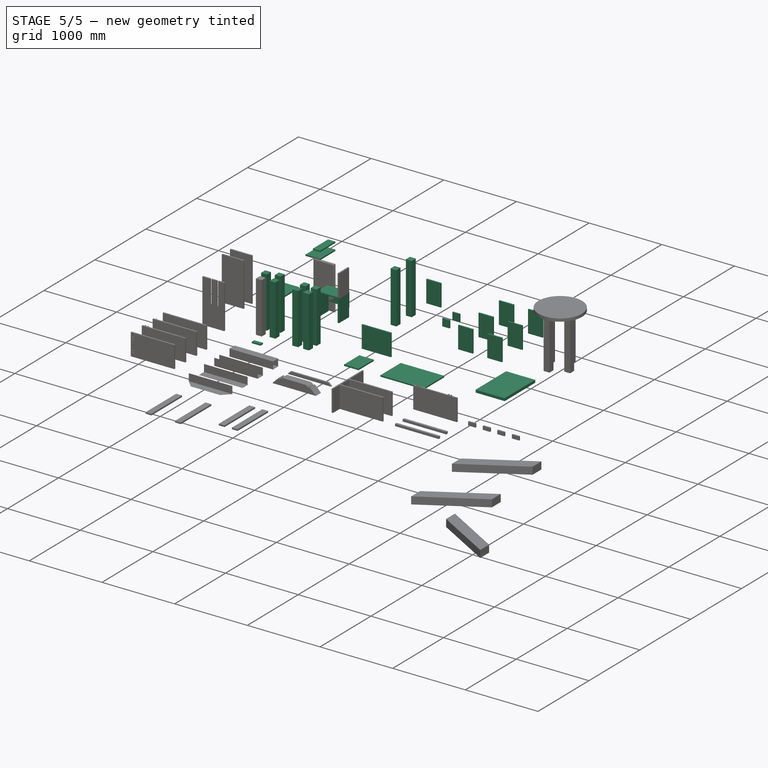
[diagram: stage 5 of 5 — iso view after this stage's code; geometry added in this stage tinted green]
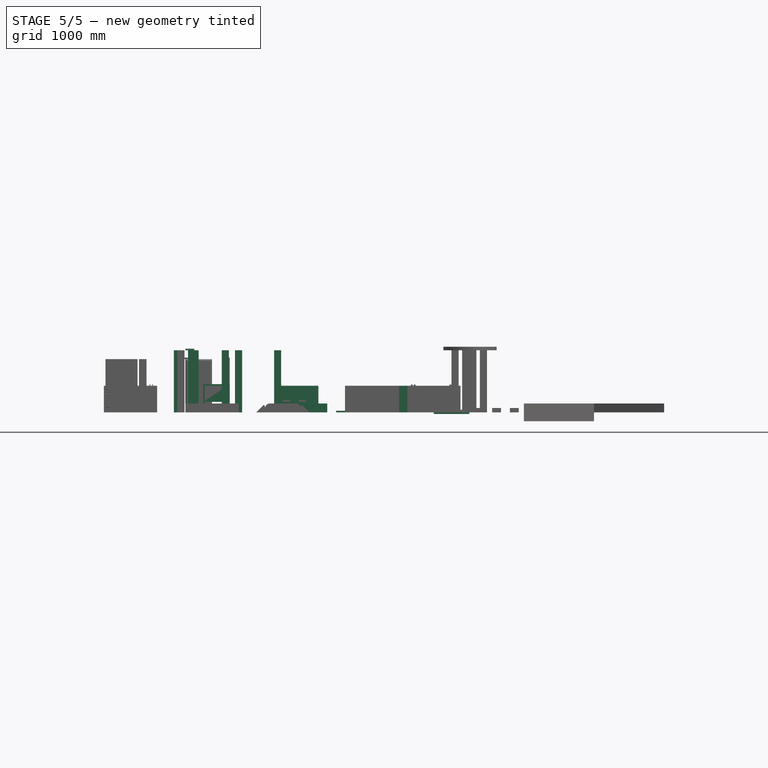
[diagram: stage 5 of 5 — front view after this stage's code; geometry added in this stage tinted green]
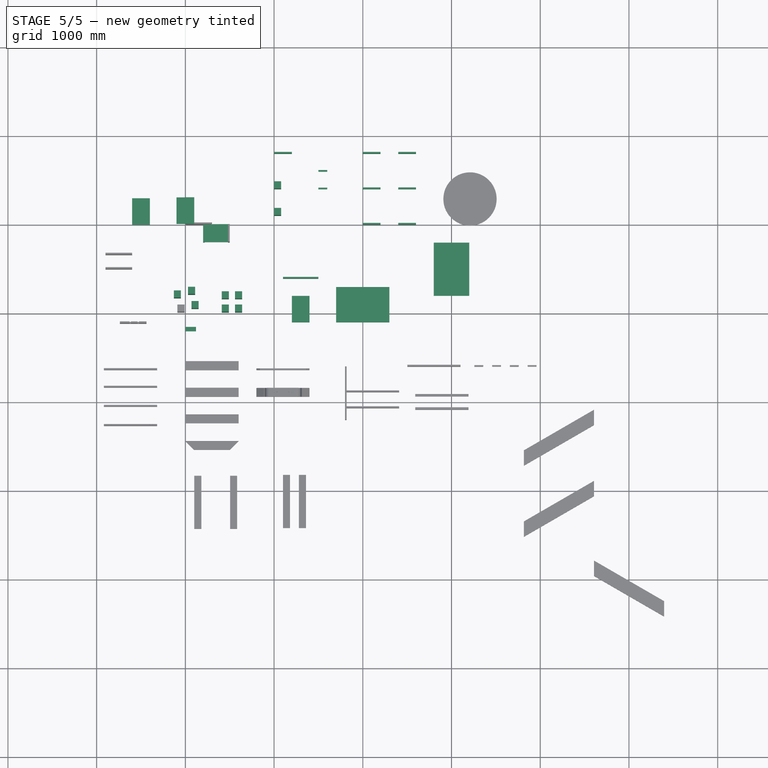
[diagram: stage 5 of 5 — top view after this stage's code; geometry added in this stage tinted green]
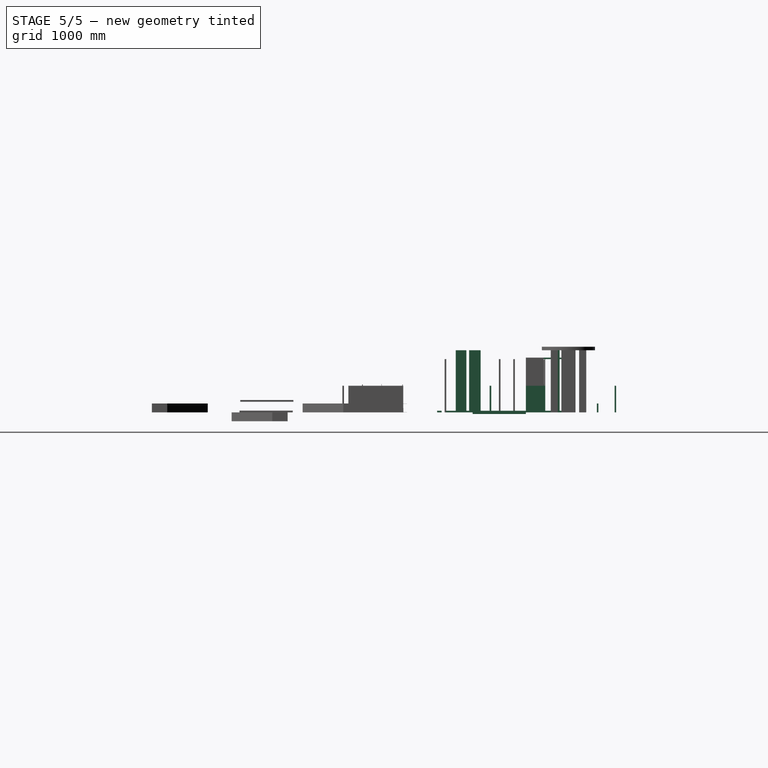
[diagram: stage 5 of 5 — right view after this stage's code; geometry added in this stage tinted green]
FEATURE [Part::Box] Box018  label="Back HDF"
  AttacherType = Attacher::AttachEngine3D
  Height = 200
  Length = 300
  Placement = pos=(200,0,118) rot=(0,0,1;0rad)
  Width = 3
FEATURE [Part::Box] Box023  label="Black Front"
  AttacherType = Attacher::AttachEngine3D
  Height = 300
  Length = 200
  Placement = pos=(1000,800,0) rot=(0,0,1;0rad)
  Width = 18
FEATURE [App::DocumentObjectGroup] Group005  label="Front"
  Group = -> [Box023]
FEATURE [App::DocumentObjectGroup] Group004  label="Back"
  Group = -> [Box018]
FEATURE [App::DocumentObjectGroup] Group008  label="HDF"
  Group = -> [Group004]
FEATURE [Part::Box] Box024  label="Side 1"
  AttacherType = Attacher::AttachEngine3D
  Height = 300
  Length = 18
  Placement = pos=(200,-200,0) rot=(0,0,1;0rad)
  Width = 200
FEATURE [Part::Box] Box025  label="Side 2"
  AttacherType = Attacher::AttachEngine3D
  Height = 300
  Length = 18
  Placement = pos=(482,-200,0) rot=(0,0,1;0rad)
  Width = 200
FEATURE [Part::Box] Box026  label="Top 1"
  AttacherType = Attacher::AttachEngine3D
  Height = 18
  Length = 300
  Placement = pos=(200,-200,300) rot=(0,0,1;0rad)
  Width = 200
FEATURE [App::DocumentObjectGroup] Group010  label="Top"
  Group = -> [Box026]
FEATURE [Part::Box] Box027  label="Foot 1"
  AttacherType = Attacher::AttachEngine3D
  Height = 700
  Length = 80
  Placement = pos=(1000,100,0) rot=(0,0,1;0rad)
  Width = 80
FEATURE [Part::Box] Box028  label="Foot 2"
  AttacherType = Attacher::AttachEngine3D
  Height = 700
  Length = 80
  Placement = pos=(1000,400,0) rot=(0,0,1;0rad)
  Width = 80
FEATURE [App::DocumentObjectGroup] Group011  label="Cube Parent"
  Group = -> [Box027,Box028]
FEATURE [Part::Box] Box031  label="NoParent 200"
  AttacherType = Attacher::AttachEngine3D
  Height = 18
  Length = 200
  Placement = pos=(-100,0,600) rot=(0,0,1;0rad)
  Width = 300
FEATURE [Part::Box] Box032  label="NoGrand 100"
  AttacherType = Attacher::AttachEngine3D
  Height = 18
  Length = 100
  Placement = pos=(0,0,700) rot=(0,0,1;0rad)
  Width = 300
FEATURE [Part::Box] Box035  label="Small Cube 2"
  AttacherType = Attacher::AttachEngine3D
  Height = 100
  Length = 100
  Placement = pos=(1500,600,0) rot=(0,0,1;0rad)
  Width = 18
FEATURE [Part::Box] Box036  label="Small Cube 1"
  AttacherType = Attacher::AttachEngine3D
  Height = 100
  Length = 100
  Placement = pos=(1500,400,0) rot=(0,0,1;0rad)
  Width = 18
FEATURE [Part::Box] Box037  label="Array Cube"
  AttacherType = Attacher::AttachEngine3D
  Height = 300
  Length = 200
  Placement = pos=(2000,0,0) rot=(0,0,1;0rad)
  Width = 18
FEATURE [App::DocumentObjectGroup] Group014  label="Array Cube Parent"
  Group = -> [Box037]
FEATURE [Part::FeaturePython] Array  # Draft array (typed FeaturePython)
  Angle = 360
  ArrayType = 0
  Axis = (0,0,1)
  Base = -> Box037
  Center = (0,0,0)
  Count = 6
  Fuse = false
  IntervalAxis = (0,400,0)
  IntervalX = (400,0,0)
  IntervalY = (0,400,0)
  IntervalZ = (0,0,1)
  NumberPolar = 1
  NumberX = 2
  NumberY = 3
  NumberZ = 1
FEATURE [App::DocumentObjectGroup] Group015  label="Small Cube Parent"
  Group = -> [Box036,Box035]
FEATURE [Part::Box] Box  label="Hidden Cube"
  AttacherType = Attacher::AttachEngine3D
  Height = 18
  Length = 200
  Placement = pos=(-600,0,0) rot=(0,0,1;0rad)
  Width = 300
FEATURE [App::DocumentObjectGroup] Group018  label="Cube"
  Group = -> [Box]
FEATURE [App::DocumentObjectGroup] Group017  label="Hidden"
  Group = -> [Group018]
FEATURE [Part::Box] Box038  label="Sort Order"
  AttacherType = Attacher::AttachEngine3D
  Height = 18
  Length = 120
  Placement = pos=(0,-1200,0) rot=(0,0,1;0rad)
  Width = 50
FEATURE [App::DocumentObjectGroup] Group020  label="Order"
  Group = -> [Box038]
FEATURE [App::DocumentObjectGroup] Group019  label="Sort"
  Group = -> [Group020]
FEATURE [Sketcher::SketchObject] Sketch  label="Sketch001"
  AttachmentOffset = pos=(1300,-500,0) rot=(0,0,1;0rad)
  FullyConstrained = false
  MapMode = 5
  Placement = pos=(1300,-500,0) rot=(0,0,1;0rad)
  Support = -> [XY_Plane]
  sketch-geometry (4):
    g0: LineSegment StartX=0 StartY=-90.3636 StartZ=0 EndX=200 EndY=-90.3636 EndZ=0
    g1: LineSegment StartX=200 StartY=-90.3636 StartZ=0 EndX=200 EndY=-108.364 EndZ=0
    g2: LineSegment StartX=200 StartY=-108.364 StartZ=0 EndX=0 EndY=-108.364 EndZ=0
    g3: LineSegment StartX=0 StartY=-108.364 StartZ=0 EndX=0 EndY=-90.3636 EndZ=0
  constraints (11):
    c: Coincident(g0,g1)
    c: Coincident(g1,g2)
    c: Coincident(g2,g3)
    c: Coincident(g3,g0)
    c: Horizontal(g0)
    c: Horizontal(g2)
    c: Vertical(g1)
    c: Vertical(g3)
    c: DistanceX(g0,g0) = 200
    c: DistanceY(g3,g3) = 18
    c: DistanceX(g-1,g0) = 200
FEATURE [PartDesign::Pad] Pad  label="PDMirror Pad"
  AllowMultiFace = false
  Direction = (1,1,1)
  Length = 300
  Length2 = 100
  Profile = -> Sketch
  Type = 0
FEATURE [Sketcher::SketchObject] Sketch001  label="Sketch002"
  AttachmentOffset = pos=(1500,-1200,0) rot=(0,0,1;0rad)
  FullyConstrained = true
  MapMode = 5
  Placement = pos=(1500,-1200,0) rot=(0,0,1;0rad)
  Support = -> [XY_Plane001]
  sketch-geometry (4):
    g0: LineSegment StartX=-300 StartY=400 StartZ=0 EndX=-100 EndY=400 EndZ=0
    g1: LineSegment StartX=-100 StartY=400 StartZ=0 EndX=-100 EndY=100 EndZ=0
    g2: LineSegment StartX=-100 StartY=100 StartZ=0 EndX=-300 EndY=100 EndZ=0
    g3: LineSegment StartX=-300 StartY=100 StartZ=0 EndX=-300 EndY=400 EndZ=0
  constraints (12):
    c: Coincident(g0,g1)
    c: Coincident(g1,g2)
    c: Coincident(g2,g3)
    c: Coincident(g3,g0)
    c: Horizontal(g0)
    c: Horizontal(g2)
    c: Vertical(g1)
    c: Vertical(g3)
    c: DistanceX(g0,g0) = 200
    c: DistanceY(g3,g3) = 300
    c: DistanceY(g-1,g0) = 400
    c: DistanceX(g1,g-1) = 100
FEATURE [PartDesign::Pad] Pad001  label="Pad Single"
  AllowMultiFace = false
  Direction = (1,1,1)
  Length = 18
  Length2 = 100
  Profile = -> Sketch001
  Type = 0
FEATURE [PartDesign::Body] Body001  label="Pad Single Body"
  Group = -> [Sketch001,Pad001]
  Origin = -> Origin001
  Tip = -> Pad001
FEATURE [PartDesign::Mirrored] Mirrored
  BaseFeature = -> Pad
  MirrorPlane = -> Sketch [V_Axis]
  Originals = -> [Pad]
FEATURE [PartDesign::Body] Body  label="PDMirror Pad Body"
  Group = -> [Sketch,Pad,Mirrored]
  Origin = -> Origin
  Tip = -> Mirrored
FEATURE [Sketcher::SketchObject] Sketch002  label="Sketch003"
  AttachmentOffset = pos=(2000,-900,0) rot=(0,0,1;0rad)
  FullyConstrained = true
  MapMode = 5
  Placement = pos=(2000,-900,0) rot=(0,0,1;0rad)
  Support = -> [XY_Plane002]
  sketch-geometry (4):
    g0: LineSegment StartX=-300 StartY=200 StartZ=0 EndX=0 EndY=200 EndZ=0
    g1: LineSegment StartX=0 StartY=200 StartZ=0 EndX=0 EndY=0 EndZ=0
    g2: LineSegment StartX=0 StartY=0 StartZ=0 EndX=-300 EndY=0 EndZ=0
    g3: LineSegment StartX=-300 StartY=0 StartZ=0 EndX=-300 EndY=200 EndZ=0
  constraints (12):
    c: Coincident(g0,g1)
    c: Coincident(g1,g2)
    c: Coincident(g2,g3)
    c: Coincident(g3,g0)
    c: Horizontal(g0)
    c: Horizontal(g2)
    c: Vertical(g1)
    c: Vertical(g3)
    c: DistanceX(g0,g0) = 300
    c: DistanceY(g3,g3) = 200
    c: DistanceY(g1,g-1) = 0
    c: DistanceX(g1,g-1) = 0
FEATURE [PartDesign::Pad] Pad002  label="PDMulti 4 Pad"
  AllowMultiFace = false
  Direction = (1,1,1)
  Length = 18
  Length2 = 100
  Profile = -> Sketch002
  Type = 0
FEATURE [PartDesign::Mirrored] Mirrored001
  MirrorPlane = -> Sketch002 [V_Axis]
FEATURE [PartDesign::Mirrored] Mirrored002
  MirrorPlane = -> Sketch002 [H_Axis]
FEATURE [PartDesign::MultiTransform] MultiTransform
  BaseFeature = -> Pad002
  Originals = -> [Pad002]
  Transformations = -> [Mirrored001,Mirrored002]
FEATURE [PartDesign::Body] Body002  label="PDMulti 4 Pad Body"
  Group = -> [Sketch002,Pad002,MultiTransform,Mirrored001,Mirrored002]
  Origin = -> Origin002
  Tip = -> MultiTransform
FEATURE [Sketcher::SketchObject] Sketch003  label="Sketch004"
  AttachmentOffset = pos=(3000,-500,0) rot=(0,0,1;0rad)
  FullyConstrained = true
  MapMode = 5
  Placement = pos=(3000,-500,0) rot=(0,0,1;0rad)
  Support = -> [XY_Plane003]
  sketch-geometry (4):
    g0: LineSegment StartX=-200 StartY=300 StartZ=0 EndX=0 EndY=300 EndZ=0
    g1: LineSegment StartX=0 StartY=300 StartZ=0 EndX=0 EndY=0 EndZ=0
    g2: LineSegment StartX=0 StartY=0 StartZ=0 EndX=-200 EndY=0 EndZ=0
    g3: LineSegment StartX=-200 StartY=0 StartZ=0 EndX=-200 EndY=300 EndZ=0
  constraints (11):
    c: Coincident(g0,g1)
    c: Coincident(g1,g2)
    c: Coincident(g2,g3)
    c: Coincident(g3,g0)
    c: Horizontal(g0)
    c: Horizontal(g2)
    c: Vertical(g1)
    c: Vertical(g3)
    c: Coincident(g1,g-1)
    c: DistanceX(g0,g0) = 200
    c: DistanceY(g3,g3) = 300
FEATURE [PartDesign::Pad] Pad003  label="PDMulti 8 Pad"
  AllowMultiFace = false
  Direction = (1,1,1)
  Length = 18
  Length2 = 100
  Profile = -> Sketch003
  Type = 0
FEATURE [PartDesign::Mirrored] Mirrored003
  MirrorPlane = -> Sketch003 [V_Axis]
FEATURE [PartDesign::Mirrored] Mirrored004
  MirrorPlane = -> Sketch003 [H_Axis]
FEATURE [PartDesign::Mirrored] Mirrored005
  MirrorPlane = -> XY_Plane003
FEATURE [PartDesign::MultiTransform] MultiTransform001
  BaseFeature = -> Pad003
  Originals = -> [Pad003]
  Transformations = -> [Mirrored003,Mirrored004,Mirrored005]
FEATURE [PartDesign::Body] Body003  label="PDMulti 8 Pad Body"
  Group = -> [Sketch003,Pad003,MultiTransform001,Mirrored003,Mirrored004,Mirrored005]
  Origin = -> Origin003
  Tip = -> MultiTransform001
FEATURE [Sketcher::SketchObject] Sketch004  label="Sketch005"
  AttachmentOffset = pos=(500,-1000,0) rot=(0,0,1;0rad)
  FullyConstrained = true
  MapMode = 5
  Placement = pos=(500,-1000,0) rot=(0,0,1;0rad)
  Support = -> [XY_Plane004]
  sketch-geometry (4):
    g0: LineSegment StartX=-90 StartY=90 StartZ=0 EndX=-10 EndY=90 EndZ=0
    g1: LineSegment StartX=-10 StartY=90 StartZ=0 EndX=-10 EndY=10 EndZ=0
    g2: LineSegment StartX=-10 StartY=10 StartZ=0 EndX=-90 EndY=10 EndZ=0
    g3: LineSegment StartX=-90 StartY=10 StartZ=0 EndX=-90 EndY=90 EndZ=0
  constraints (12):
    c: Coincident(g0,g1)
    c: Coincident(g1,g2)
    c: Coincident(g2,g3)
    c: Coincident(g3,g0)
    c: Horizontal(g0)
    c: Horizontal(g2)
    c: Vertical(g1)
    c: Vertical(g3)
    c: DistanceY(g-1,g1) = 10
    c: DistanceX(g1,g-1) = 10
    c: DistanceX(g0,g0) = 80
    c: DistanceY(g3,g3) = 80
FEATURE [PartDesign::Pad] Pad004  label="Array Pad"
  AllowMultiFace = false
  Direction = (1,1,1)
  Length = 700
  Length2 = 100
  Profile = -> Sketch004
  Type = 0
FEATURE [PartDesign::Body] Body004  label="Array Pad Body"
  Group = -> [Sketch004,Pad004]
  Origin = -> Origin004
  Tip = -> Pad004
FEATURE [Part::FeaturePython] Array001  # Draft array (typed FeaturePython)
  Angle = 360
  ArrayType = 0
  Axis = (0,0,1)
  Base = -> Pad004
  Center = (0,0,0)
  Count = 4
  Fuse = false
  IntervalAxis = (0,0,0)
  IntervalX = (150,0,0)
  IntervalY = (0,150,0)
  IntervalZ = (0,0,150)
  NumberPolar = 1
  NumberX = 2
  NumberY = 2
  NumberZ = 1
FEATURE [PartDesign::Body] Body005  label="Array Polar Pad Body"
  Group = -> [Sketch005,Pad005]
  Origin = -> Origin005
  Tip = -> Pad005
FEATURE [Part::FeaturePython] Array002  # Draft array (typed FeaturePython)
  AlwaysSyncPlacement = false
  Angle = 360
  ArrayType = 1
  Axis = (0,0,1)
  Base = -> Pad005
  Center = (10,-850,0)
  Count = 4
  ExpandArray = false
  Fuse = false
  IntervalAxis = (0,0,0)
  IntervalX = (50,0,0)
  IntervalY = (0,50,0)
  IntervalZ = (0,0,50)
  NumberCircles = 3
  NumberPolar = 4
  NumberX = 2
  NumberY = 2
  NumberZ = 1
  PlacementList = 4 placements: [(0,0,0),(-840,-860,0),(20,-1700,0),(860,-840,0)]
  RadialDistance = 50
  ScaleList = (4) [(1,1,1),(1,1,1),(1,1,1),(1,1,1)]
  Symmetry = 1
  TangentialDistance = 25
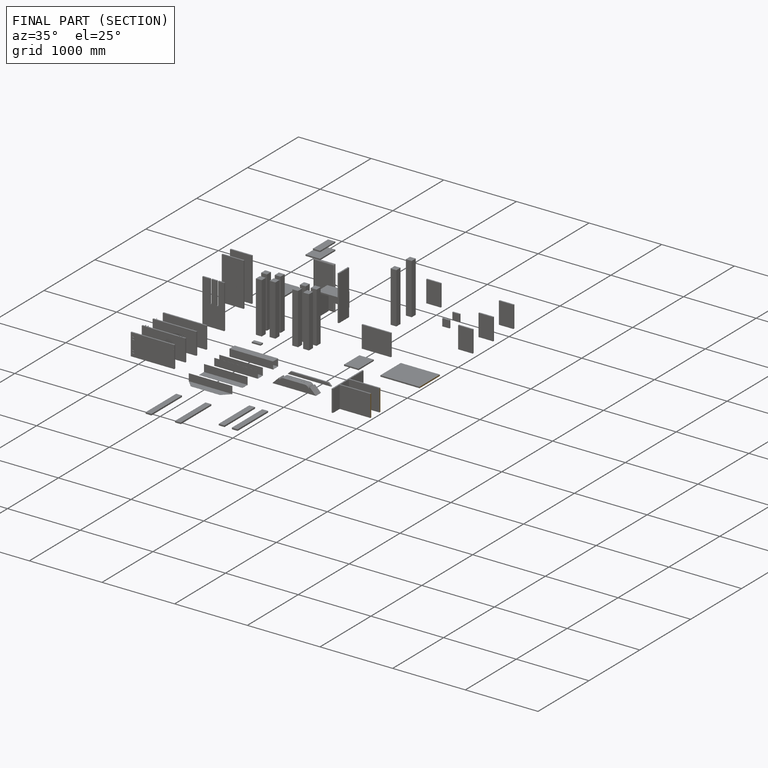
[diagram: finished part — half-section view (interior)]
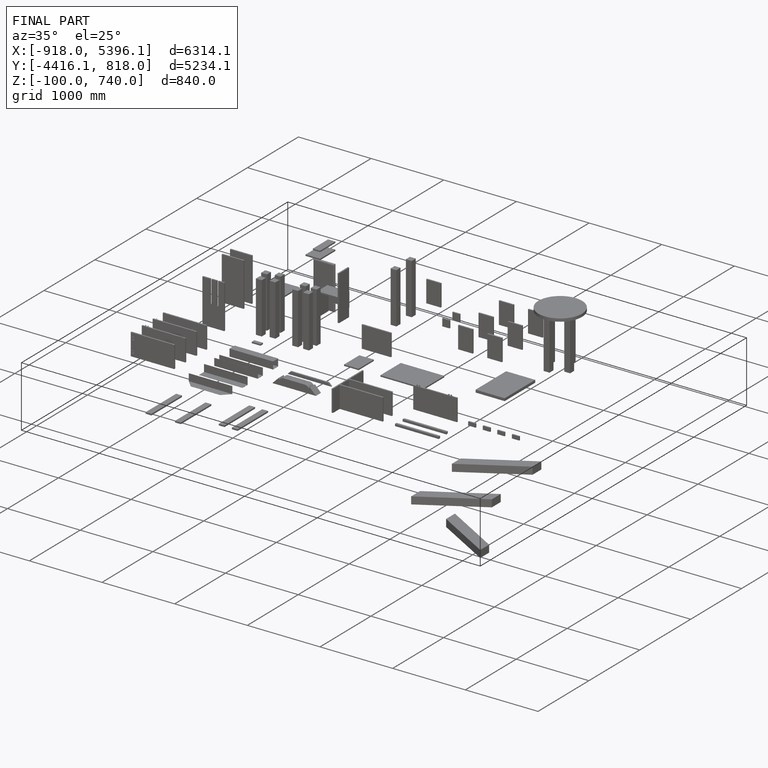
[diagram: finished part — iso view with bounding-box wireframe]
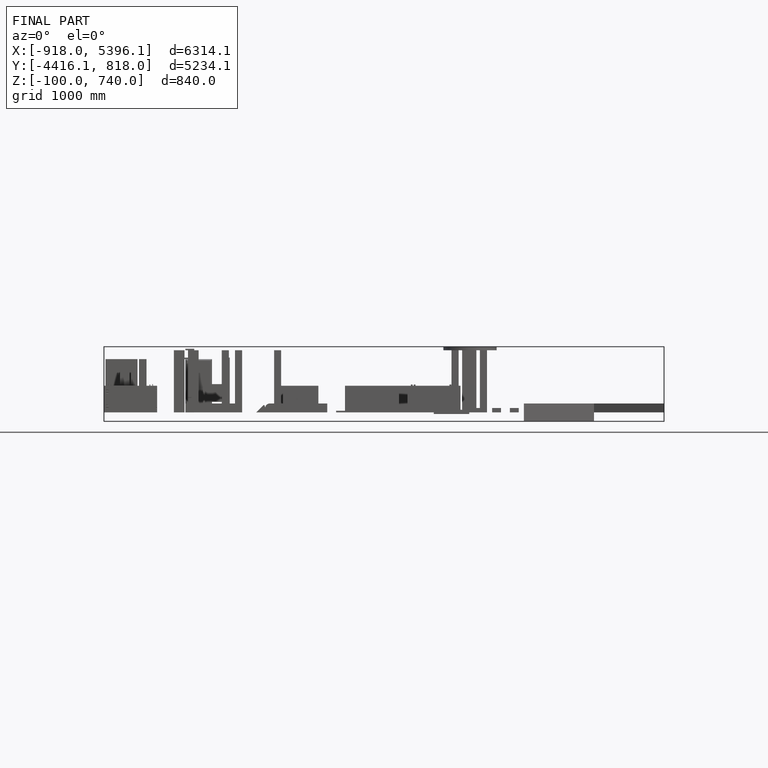
[diagram: finished part — front view with bounding-box wireframe]
